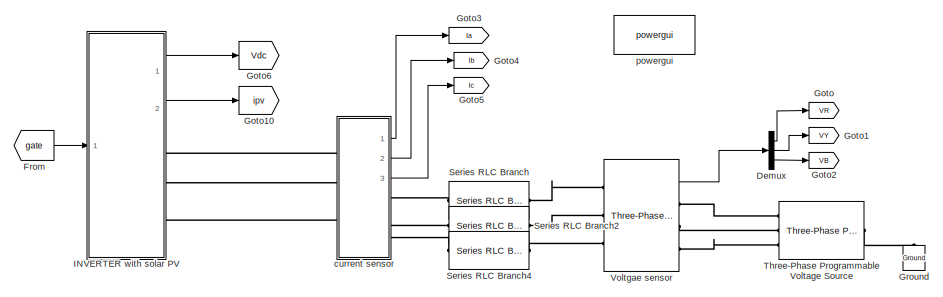
[diagram: root canvas - part 1/3, top left region]
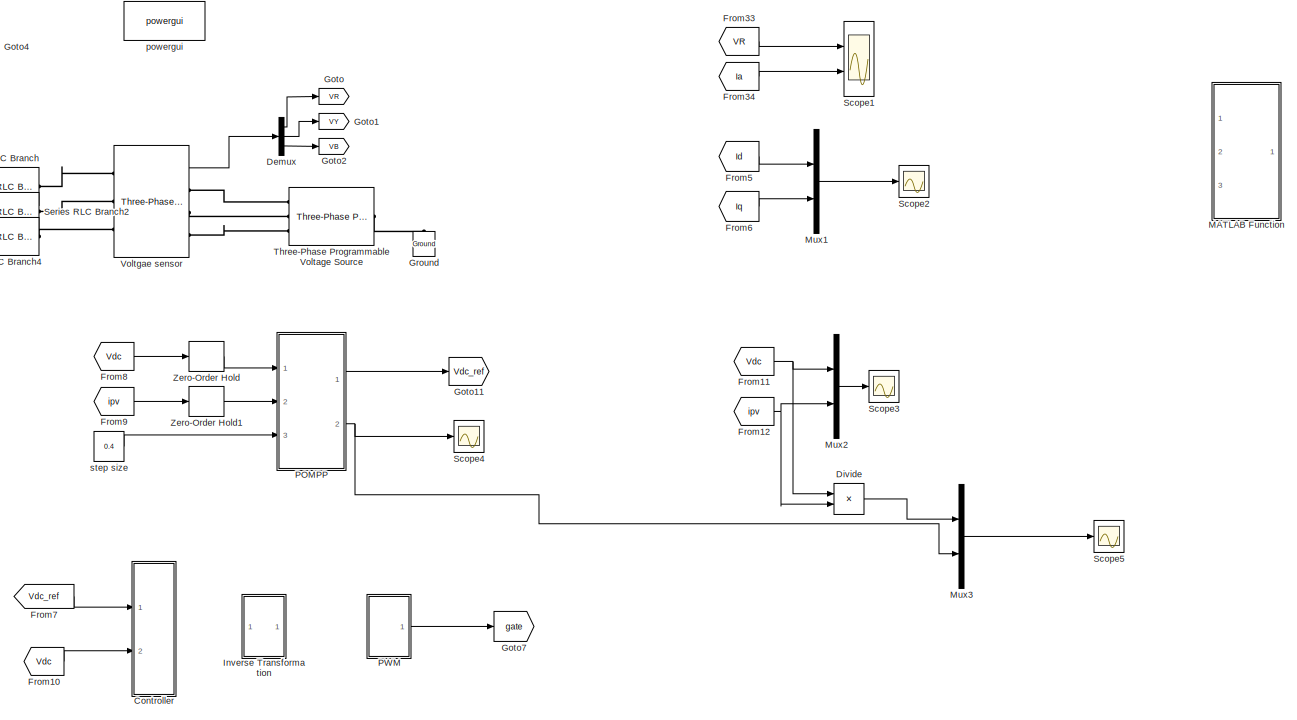
[diagram: root canvas - part 2/3, center side, full height]
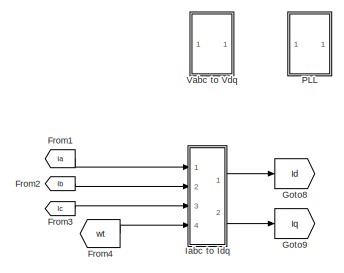
[diagram: root canvas - part 3/3, bottom left region]
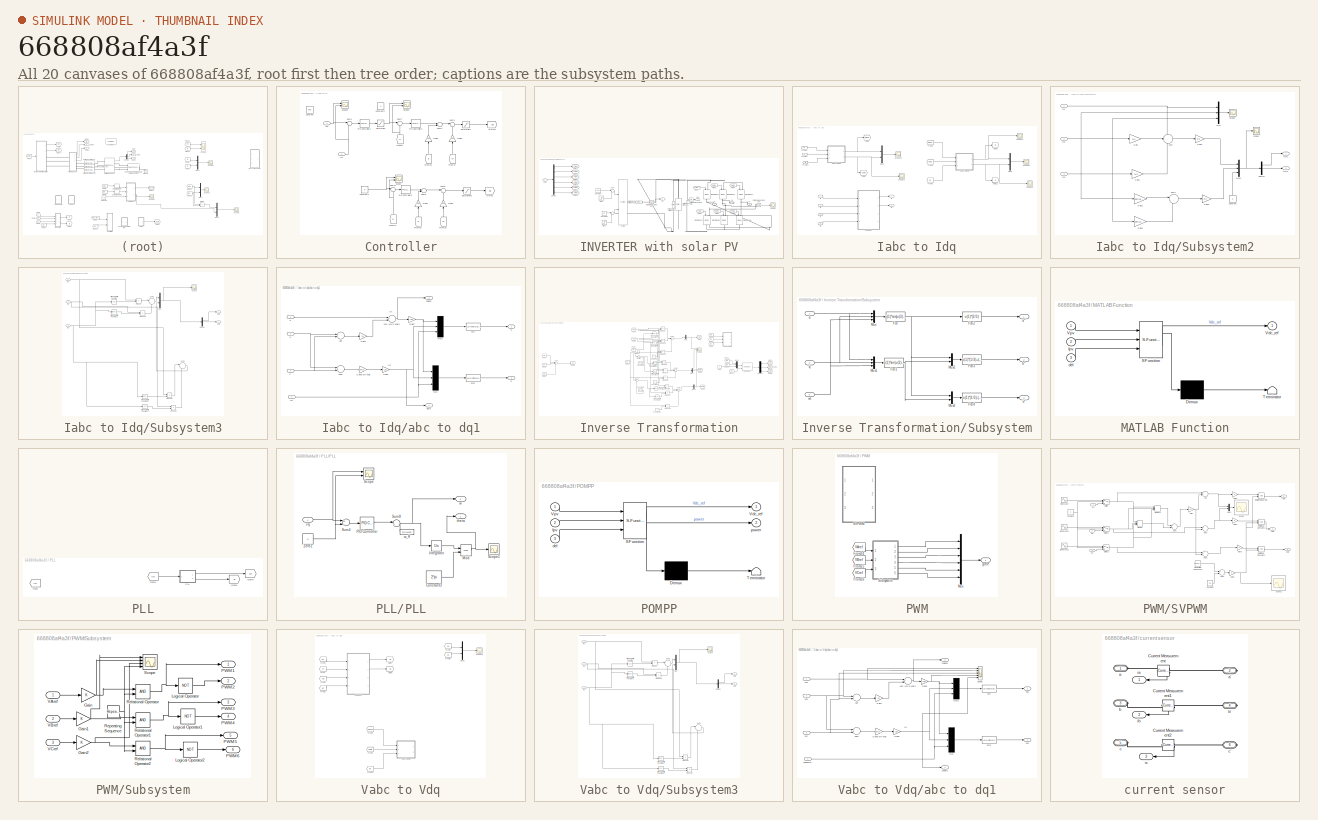
[diagram: thumbnail index - all 20 canvases of the model, root first then tree order]
MODEL slx_668808af4a3f
KIND model
CONFIG AbsTol = auto
CONFIG EnableMultiTasking = off
CONFIG FixedStep = 1e-6
CONFIG MaxStep = auto
CONFIG MinStep = auto
CONFIG RelTol = 1e-3
CONFIG SampleTimeConstraint = Unconstrained
CONFIG Solver = FixedStepAuto
CONFIG SolverName = FixedStepAuto
CONFIG StartTime = 0.0
CONFIG StopTime = 3
BLOCK [SubSystem] Controller
  Ports = [2]
  RequestExecContextInheritance = off
BLOCK [Constant] Controller/Constant
  Value = 550
BLOCK [Constant] Controller/Constant2
  Value = -5
BLOCK [Constant] Controller/Constant3
  Value = 0
BLOCK [From] Controller/From14
  GotoTag = Iq
  TagVisibility = global
BLOCK [From] Controller/From16
  GotoTag = Iq
  TagVisibility = global
BLOCK [From] Controller/From17
  GotoTag = Vd
  TagVisibility = global
BLOCK [From] Controller/From19
  GotoTag = Id
  TagVisibility = global
BLOCK [From] Controller/From20
  GotoTag = Vq
  TagVisibility = global
BLOCK [From] Controller/From6
  GotoTag = Id
  TagVisibility = global
BLOCK [Gain] Controller/Gain1
  Gain = 1/350
  OutDataTypeStr = Inherit: Inherit via internal rule
  ParamDataTypeStr = Inherit: Inherit via internal rule
  SaturateOnIntegerOverflow = off
BLOCK [Gain] Controller/Gain2
  Gain = 1/350
  OutDataTypeStr = Inherit: Inherit via internal rule
  ParamDataTypeStr = Inherit: Inherit via internal rule
  SaturateOnIntegerOverflow = off
BLOCK [Gain] Controller/Gain3
  Gain = 1/350
  OutDataTypeStr = Inherit: Inherit via internal rule
  ParamDataTypeStr = Inherit: Inherit via internal rule
  SaturateOnIntegerOverflow = off
BLOCK [Gain] Controller/Gain4
  Gain = 1/350
  OutDataTypeStr = Inherit: Inherit via internal rule
  ParamDataTypeStr = Inherit: Inherit via internal rule
  SaturateOnIntegerOverflow = off
BLOCK [Goto] Controller/Goto12
  GotoTag = Ed
  TagVisibility = global
BLOCK [Goto] Controller/Goto8
  GotoTag = Eq
  TagVisibility = global
BLOCK [Inport] Controller/In1
  IconDisplay = Port number
  Port = 2
BLOCK [Inport] Controller/In2
  IconDisplay = Port number
BLOCK [Reference] Controller/PID Controller1  REF=simulink/Continuous/PID Controller
  Ports = [1, 1]
  SourceBlock = simulink/Continuous/PID Controller
  SourceProductBaseCode = SL
  SourceProductName = Simulink
  SourceType = PID 1dof
BLOCK [Reference] Controller/PID Controller3  REF=simulink/Continuous/PID Controller
  Ports = [1, 1]
  SourceBlock = simulink/Continuous/PID Controller
  SourceProductBaseCode = SL
  SourceProductName = Simulink
  SourceType = PID 1dof
BLOCK [Reference] Controller/PID Controller6  REF=simulink/Continuous/PID Controller
  Ports = [1, 1]
  SourceBlock = simulink/Continuous/PID Controller
  SourceProductBaseCode = SL
  SourceProductName = Simulink
  SourceType = PID 1dof
BLOCK [Saturate] Controller/Saturation
  InputPortMap = u0
  LowerLimit = -10
  Ports = [1, 1]
  UpperLimit = 10
BLOCK [Saturate] Controller/Saturation1
  InputPortMap = u0
  LowerLimit = -1.2
  Ports = [1, 1]
  UpperLimit = 1.2
BLOCK [Saturate] Controller/Saturation2
  InputPortMap = u0
  LowerLimit = -1.2
  Ports = [1, 1]
  UpperLimit = 1.2
BLOCK [Scope] Controller/Scope
  Floating = off
  NumInputPorts = 2
  Ports = [2]
  ScopeSpecificationString = Simulink.scopes.TimeScopeBlockCfg('CurrentConfiguration', extmgr.ConfigurationSet(extmgr.Configuration('Core','General UI',true),extmgr.Configuration('Core','Source UI',true),extmgr.Configuration('Sources','WiredSimulink',true,'DataLoggingVariableName','ScopeData1'),extmgr.Configuration('Visuals','Time Domain',true,'SerializedDisplays',{struct('MinYLimReal','-1.8889','MaxYLimReal','6.88399','YLabe...<+1480ch>
BLOCK [Scope] Controller/Scope1
  Floating = off
  NumInputPorts = 2
  Ports = [2]
  ScopeSpecificationString = Simulink.scopes.TimeScopeBlockCfg('CurrentConfiguration', extmgr.ConfigurationSet(extmgr.Configuration('Core','General UI',true),extmgr.Configuration('Core','Source UI',true),extmgr.Configuration('Sources','WiredSimulink',true,'DataLoggingVariableName','ScopeData2'),extmgr.Configuration('Visuals','Time Domain',true,'SerializedDisplays',{struct('MinYLimReal','-11.93266','MaxYLimReal','1.32585','YLa...<+1487ch>
BLOCK [Scope] Controller/Scope2
  Floating = off
  NumInputPorts = 2
  Ports = [2]
  ScopeSpecificationString = Simulink.scopes.TimeScopeBlockCfg('CurrentConfiguration', extmgr.ConfigurationSet(extmgr.Configuration('Core','General UI',true),extmgr.Configuration('Core','Source UI',true),extmgr.Configuration('Sources','WiredSimulink',true,'DataLoggingVariableName','ScopeData5'),extmgr.Configuration('Visuals','Time Domain',true,'SerializedDisplays',{struct('MinYLimReal','669.36984','MaxYLimReal','894.14284','Y...<+1735ch>
BLOCK [Sum] Controller/Sum1
  IconShape = round
  InputSameDT = off
  Inputs = |+-
  OutDataTypeStr = Inherit: Inherit via internal rule
  Ports = [2, 1]
  SaturateOnIntegerOverflow = off
BLOCK [Sum] Controller/Sum12
  IconShape = round
  InputSameDT = off
  Inputs = |+-
  OutDataTypeStr = Inherit: Inherit via internal rule
  Ports = [2, 1]
  SaturateOnIntegerOverflow = off
BLOCK [Sum] Controller/Sum2
  InputSameDT = off
  Inputs = -+
  OutDataTypeStr = Inherit: Inherit via internal rule
  Ports = [2, 1]
  SaturateOnIntegerOverflow = off
BLOCK [Sum] Controller/Sum3
  IconShape = round
  InputSameDT = off
  Inputs = |++
  OutDataTypeStr = Inherit: Inherit via internal rule
  Ports = [2, 1]
  SaturateOnIntegerOverflow = off
BLOCK [Sum] Controller/Sum5
  InputSameDT = off
  Inputs = --
  OutDataTypeStr = Inherit: Inherit via internal rule
  Ports = [2, 1]
  SaturateOnIntegerOverflow = off
BLOCK [Sum] Controller/Sum6
  IconShape = round
  InputSameDT = off
  Inputs = |++
  OutDataTypeStr = Inherit: Inherit via internal rule
  Ports = [2, 1]
  SaturateOnIntegerOverflow = off
BLOCK [Sum] Controller/Sum7
  IconShape = round
  InputSameDT = off
  Inputs = |+-
  OutDataTypeStr = Inherit: Inherit via internal rule
  Ports = [2, 1]
  SaturateOnIntegerOverflow = off
BLOCK [Demux] Demux
  DisplayOption = bar
  Outputs = 3
  Ports = [1, 3]
BLOCK [Product] Divide
  InputSameDT = off
  Inputs = **
  OutDataTypeStr = Inherit: Inherit via internal rule
  Ports = [2, 1]
  RndMeth = Floor
  SaturateOnIntegerOverflow = off
BLOCK [From] From
  GotoTag = gate
BLOCK [From] From1
  GotoTag = Ia
  TagVisibility = global
BLOCK [From] From10
  GotoTag = Vdc
BLOCK [From] From11
  GotoTag = Vdc
BLOCK [From] From12
  GotoTag = ipv
BLOCK [From] From2
  GotoTag = Ib
  TagVisibility = global
BLOCK [From] From3
  GotoTag = Ic
  TagVisibility = global
BLOCK [From] From33
  GotoTag = VR
  TagVisibility = global
BLOCK [From] From34
  GotoTag = Ia
  TagVisibility = global
BLOCK [From] From4
  GotoTag = wt
  TagVisibility = global
BLOCK [From] From5
  GotoTag = Id
  TagVisibility = global
BLOCK [From] From6
  GotoTag = Iq
  TagVisibility = global
BLOCK [From] From7
  GotoTag = Vdc_ref
BLOCK [From] From8
  GotoTag = Vdc
BLOCK [From] From9
  GotoTag = ipv
BLOCK [Goto] Goto
  GotoTag = VR
  TagVisibility = global
BLOCK [Goto] Goto1
  GotoTag = VY
  TagVisibility = global
BLOCK [Goto] Goto10
  GotoTag = ipv
BLOCK [Goto] Goto11
  GotoTag = Vdc_ref
BLOCK [Goto] Goto2
  GotoTag = VB
  TagVisibility = global
BLOCK [Goto] Goto3
  GotoTag = Ia
  TagVisibility = global
BLOCK [Goto] Goto4
  GotoTag = Ib
  TagVisibility = global
BLOCK [Goto] Goto5
  GotoTag = Ic
  TagVisibility = global
BLOCK [Goto] Goto6
  GotoTag = Vdc
BLOCK [Goto] Goto7
  GotoTag = gate
BLOCK [Goto] Goto8
  GotoTag = Id
  TagVisibility = global
BLOCK [Goto] Goto9
  GotoTag = Iq
  TagVisibility = global
BLOCK [Reference] Ground  REF=powerlib/Elements/Ground
  Ports = [0, 0, 0, 0, 0, 1]
  SourceBlock = powerlib/Elements/Ground
  SourceProductBaseCode = PS
  SourceProductName = Simscape Power Systems
  SourceType = Ground
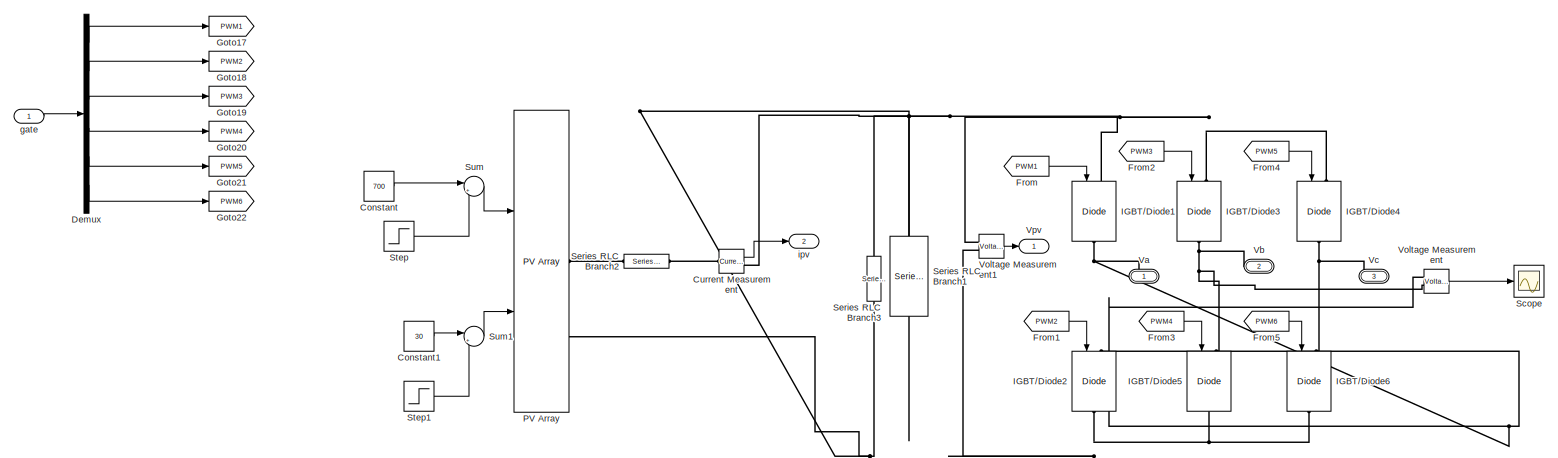
[diagram: INVERTER with solar PV - part 1/1, most of the canvas]
BLOCK [SubSystem] INVERTER with solar PV
  Ports = [1, 2, 0, 0, 0, 0, 3]
  RequestExecContextInheritance = off
BLOCK [Constant] INVERTER with solar PV/Constant
  Value = 700
BLOCK [Constant] INVERTER with solar PV/Constant1
  Value = 30
BLOCK [Reference] INVERTER with solar PV/Current Measurement  REF=powerlib/Measurements/Current Measurement
  Ports = [0, 1, 0, 0, 0, 1, 1]
  SourceBlock = powerlib/Measurements/Current Measurement
  SourceProductBaseCode = PS
  SourceProductName = Simscape Power Systems
  SourceType = Current Measurement
  UserDataPersistent = on
BLOCK [Demux] INVERTER with solar PV/Demux
  DisplayOption = bar
  Outputs = 6
  Ports = [1, 6]
BLOCK [From] INVERTER with solar PV/From
  GotoTag = PWM1
  TagVisibility = global
BLOCK [From] INVERTER with solar PV/From1
  GotoTag = PWM2
  TagVisibility = global
BLOCK [From] INVERTER with solar PV/From2
  GotoTag = PWM3
  TagVisibility = global
BLOCK [From] INVERTER with solar PV/From3
  GotoTag = PWM4
  TagVisibility = global
BLOCK [From] INVERTER with solar PV/From4
  GotoTag = PWM5
  TagVisibility = global
BLOCK [From] INVERTER with solar PV/From5
  GotoTag = PWM6
  TagVisibility = global
BLOCK [Goto] INVERTER with solar PV/Goto17
  GotoTag = PWM1
  TagVisibility = global
BLOCK [Goto] INVERTER with solar PV/Goto18
  GotoTag = PWM2
  TagVisibility = global
BLOCK [Goto] INVERTER with solar PV/Goto19
  GotoTag = PWM3
  TagVisibility = global
BLOCK [Goto] INVERTER with solar PV/Goto20
  GotoTag = PWM4
  TagVisibility = global
BLOCK [Goto] INVERTER with solar PV/Goto21
  GotoTag = PWM5
  TagVisibility = global
BLOCK [Goto] INVERTER with solar PV/Goto22
  GotoTag = PWM6
  TagVisibility = global
BLOCK [Reference] INVERTER with solar PV/IGBT//Diode1  REF=powerlib/Power
Electronics/IGBT//Diode
  Ports = [1, 0, 0, 0, 0, 1, 1]
  SourceBlock = powerlib/Power\nElectronics/IGBT//Diode
  SourceProductBaseCode = PS
  SourceProductName = Simscape Power Systems
  SourceType = IGBT/Diode
BLOCK [Reference] INVERTER with solar PV/IGBT//Diode2  REF=powerlib/Power
Electronics/IGBT//Diode
  Ports = [1, 0, 0, 0, 0, 1, 1]
  SourceBlock = powerlib/Power\nElectronics/IGBT//Diode
  SourceProductBaseCode = PS
  SourceProductName = Simscape Power Systems
  SourceType = IGBT/Diode
BLOCK [Reference] INVERTER with solar PV/IGBT//Diode3  REF=powerlib/Power
Electronics/IGBT//Diode
  Ports = [1, 0, 0, 0, 0, 1, 1]
  SourceBlock = powerlib/Power\nElectronics/IGBT//Diode
  SourceProductBaseCode = PS
  SourceProductName = Simscape Power Systems
  SourceType = IGBT/Diode
BLOCK [Reference] INVERTER with solar PV/IGBT//Diode4  REF=powerlib/Power
Electronics/IGBT//Diode
  Ports = [1, 0, 0, 0, 0, 1, 1]
  SourceBlock = powerlib/Power\nElectronics/IGBT//Diode
  SourceProductBaseCode = PS
  SourceProductName = Simscape Power Systems
  SourceType = IGBT/Diode
BLOCK [Reference] INVERTER with solar PV/IGBT//Diode5  REF=powerlib/Power
Electronics/IGBT//Diode
  Ports = [1, 0, 0, 0, 0, 1, 1]
  SourceBlock = powerlib/Power\nElectronics/IGBT//Diode
  SourceProductBaseCode = PS
  SourceProductName = Simscape Power Systems
  SourceType = IGBT/Diode
BLOCK [Reference] INVERTER with solar PV/IGBT//Diode6  REF=powerlib/Power
Electronics/IGBT//Diode
  Ports = [1, 0, 0, 0, 0, 1, 1]
  SourceBlock = powerlib/Power\nElectronics/IGBT//Diode
  SourceProductBaseCode = PS
  SourceProductName = Simscape Power Systems
  SourceType = IGBT/Diode
BLOCK [Reference] INVERTER with solar PV/PV Array  REF=re_lib/Solar/PV Array
  Ports = [2, 1, 0, 0, 0, 0, 2]
  SourceBlock = re_lib/Solar/PV Array
  SourceProductBaseCode = PS
  SourceProductName = Simscape Power Systems
  SourceType = PV array
BLOCK [Scope] INVERTER with solar PV/Scope
  Floating = off
  NumInputPorts = 1
  Ports = [1]
  ScopeSpecificationString = Simulink.scopes.TimeScopeBlockCfg('CurrentConfiguration', extmgr.ConfigurationSet(extmgr.Configuration('Core','General UI',true),extmgr.Configuration('Core','Source UI',true),extmgr.Configuration('Sources','WiredSimulink',true,'DataLoggingVariableName','ScopeData1'),extmgr.Configuration('Visuals','Time Domain',true,'SerializedDisplays',{struct('MinYLimReal','-910.4316','MaxYLimReal','916.97333','Y...<+1463ch>
BLOCK [Reference] INVERTER with solar PV/Series RLC Branch1  REF=powerlib/Elements/Series RLC Branch
  Ports = [0, 0, 0, 0, 0, 1, 1]
  SourceBlock = powerlib/Elements/Series RLC Branch
  SourceProductBaseCode = PS
  SourceProductName = Simscape Power Systems
  SourceType = Series RLC Branch
BLOCK [Reference] INVERTER with solar PV/Series RLC Branch2  REF=powerlib/Elements/Series RLC Branch
  Ports = [0, 0, 0, 0, 0, 1, 1]
  SourceBlock = powerlib/Elements/Series RLC Branch
  SourceProductBaseCode = PS
  SourceProductName = Simscape Power Systems
  SourceType = Series RLC Branch
BLOCK [Reference] INVERTER with solar PV/Series RLC Branch3  REF=powerlib/Elements/Series RLC Branch
  Ports = [0, 0, 0, 0, 0, 1, 1]
  SourceBlock = powerlib/Elements/Series RLC Branch
  SourceProductBaseCode = PS
  SourceProductName = Simscape Power Systems
  SourceType = Series RLC Branch
BLOCK [Step] INVERTER with solar PV/Step
  After = 200
  SampleTime = 0
  Time = 3
BLOCK [Step] INVERTER with solar PV/Step1
  After = 10
  SampleTime = 0
  Time = 4
BLOCK [Sum] INVERTER with solar PV/Sum
  IconShape = round
  InputSameDT = off
  Inputs = |+-
  OutDataTypeStr = Inherit: Inherit via internal rule
  Ports = [2, 1]
  SaturateOnIntegerOverflow = off
BLOCK [Sum] INVERTER with solar PV/Sum1
  IconShape = round
  InputSameDT = off
  Inputs = |++
  OutDataTypeStr = Inherit: Inherit via internal rule
  Ports = [2, 1]
  SaturateOnIntegerOverflow = off
BLOCK [PMIOPort] INVERTER with solar PV/Va
  Side = Right
BLOCK [PMIOPort] INVERTER with solar PV/Vb
  Port = 2
  Side = Right
BLOCK [PMIOPort] INVERTER with solar PV/Vc
  Port = 3
  Side = Right
BLOCK [Reference] INVERTER with solar PV/Voltage Measurement  REF=powerlib/Measurements/Voltage Measurement
  Ports = [0, 1, 0, 0, 0, 2]
  SourceBlock = powerlib/Measurements/Voltage Measurement
  SourceProductBaseCode = PS
  SourceProductName = Simscape Power Systems
  SourceType = Voltage Measurement
  UserDataPersistent = on
BLOCK [Reference] INVERTER with solar PV/Voltage Measurement1  REF=powerlib/Measurements/Voltage Measurement
  Ports = [0, 1, 0, 0, 0, 2]
  SourceBlock = powerlib/Measurements/Voltage Measurement
  SourceProductBaseCode = PS
  SourceProductName = Simscape Power Systems
  SourceType = Voltage Measurement
  UserDataPersistent = on
BLOCK [Outport] INVERTER with solar PV/Vpv
  IconDisplay = Port number
  VectorParamsAs1DForOutWhenUnconnected = on
BLOCK [Inport] INVERTER with solar PV/gate
  IconDisplay = Port number
BLOCK [Outport] INVERTER with solar PV/ipv
  IconDisplay = Port number
  Port = 2
  VectorParamsAs1DForOutWhenUnconnected = on
BLOCK [SubSystem] Iabc to Idq
  Ports = [4, 2]
  RequestExecContextInheritance = off
BLOCK [From] Iabc to Idq/From10
  Commented = on
  GotoTag = IR
  TagVisibility = global
BLOCK [From] Iabc to Idq/From11
  Commented = on
  GotoTag = IY
  TagVisibility = global
BLOCK [From] Iabc to Idq/From12
  Commented = on
  GotoTag = IB
  TagVisibility = global
BLOCK [From] Iabc to Idq/From6
  Commented = on
  GotoTag = wt
  TagVisibility = global
BLOCK [From] Iabc to Idq/From8
  Commented = on
  GotoTag = Ialpha
  TagVisibility = global
BLOCK [From] Iabc to Idq/From9
  Commented = on
  GotoTag = Ibeta
  TagVisibility = global
BLOCK [Goto] Iabc to Idq/Goto11
  Commented = on
  GotoTag = Iq
  TagVisibility = global
BLOCK [Goto] Iabc to Idq/Goto6
  Commented = on
  GotoTag = Ialpha
  TagVisibility = global
BLOCK [Goto] Iabc to Idq/Goto7
  Commented = on
  GotoTag = Ibeta
  TagVisibility = global
BLOCK [Goto] Iabc to Idq/Goto8
  Commented = on
  GotoTag = Id
  TagVisibility = global
BLOCK [Mux] Iabc to Idq/Mux2
  Commented = on
  DisplayOption = bar
  Inputs = 2
  Ports = [2, 1]
BLOCK [Mux] Iabc to Idq/Mux5
  Commented = on
  DisplayOption = bar
  Inputs = 2
  Ports = [2, 1]
BLOCK [Scope] Iabc to Idq/Scope10
  Commented = on
  Floating = off
  NumInputPorts = 1
  Ports = [1]
  ScopeSpecificationString = Simulink.scopes.TimeScopeBlockCfg('CurrentConfiguration', extmgr.ConfigurationSet(extmgr.Configuration('Core','General UI',true),extmgr.Configuration('Core','Source UI',true),extmgr.Configuration('Sources','WiredSimulink',true,'DataLoggingVariableName','ScopeData2'),extmgr.Configuration('Visuals','Time Domain',true,'SerializedDisplays',{struct('MinYLimReal','-145.70829','MaxYLimReal','153.4102','Y...<+1492ch>
BLOCK [Scope] Iabc to Idq/Scope11
  Commented = on
  Floating = off
  NumInputPorts = 1
  Ports = [1]
  ScopeSpecificationString = Simulink.scopes.TimeScopeBlockCfg('CurrentConfiguration', extmgr.ConfigurationSet(extmgr.Configuration('Core','General UI',true),extmgr.Configuration('Core','Source UI',true),extmgr.Configuration('Sources','WiredSimulink',true,'DataLoggingVariableName','ScopeData3'),extmgr.Configuration('Visuals','Time Domain',true,'SerializedDisplays',{struct('MinYLimReal','-250.00000','MaxYLimReal','250.00000','...<+1384ch>
BLOCK [Scope] Iabc to Idq/Scope12
  Commented = on
  Floating = off
  NumInputPorts = 1
  Ports = [1]
  ScopeSpecificationString = Simulink.scopes.TimeScopeBlockCfg('CurrentConfiguration', extmgr.ConfigurationSet(extmgr.Configuration('Core','General UI',true),extmgr.Configuration('Core','Source UI',true),extmgr.Configuration('Sources','WiredSimulink',true,'DataLoggingVariableName','ScopeData4'),extmgr.Configuration('Visuals','Time Domain',true,'SerializedDisplays',{struct('MinYLimReal','-232.19658','MaxYLimReal','223.88581','...<+1492ch>
BLOCK [Scope] Iabc to Idq/Scope13
  Commented = on
  Floating = off
  NumInputPorts = 1
  Ports = [1]
  ScopeSpecificationString = Simulink.scopes.TimeScopeBlockCfg('CurrentConfiguration', extmgr.ConfigurationSet(extmgr.Configuration('Core','General UI',true),extmgr.Configuration('Core','Source UI',true),extmgr.Configuration('Sources','WiredSimulink',true,'DataLoggingVariableName','ScopeData5'),extmgr.Configuration('Visuals','Time Domain',true,'SerializedDisplays',{struct('MinYLimReal','-224.99692','MaxYLimReal','24.97225','Y...<+1383ch>
BLOCK [Scope] Iabc to Idq/Scope14
  Commented = on
  Floating = off
  NumInputPorts = 1
  Ports = [1]
  ScopeSpecificationString = Simulink.scopes.TimeScopeBlockCfg('CurrentConfiguration', extmgr.ConfigurationSet(extmgr.Configuration('Core','General UI',true),extmgr.Configuration('Core','Source UI',true),extmgr.Configuration('Sources','WiredSimulink',true,'DataLoggingVariableName','ScopeData6'),extmgr.Configuration('Visuals','Time Domain',true,'SerializedDisplays',{struct('MinYLimReal','-232.19658','MaxYLimReal','223.88581','...<+1491ch>
BLOCK [SubSystem] Iabc to Idq/Subsystem2
  Commented = on
  Ports = [3, 2]
  RequestExecContextInheritance = off
BLOCK [Constant] Iabc to Idq/Subsystem2/Constant
  Value = 0
BLOCK [Demux] Iabc to Idq/Subsystem2/Demux
  DisplayOption = bar
  Outputs = 3
  Ports = [1, 3]
BLOCK [Gain] Iabc to Idq/Subsystem2/Gain
  Gain = 1/2
  OutDataTypeStr = Inherit: Inherit via internal rule
  ParamDataTypeStr = Inherit: Inherit via internal rule
  SaturateOnIntegerOverflow = off
BLOCK [Gain] Iabc to Idq/Subsystem2/Gain1
  Gain = 1/2
  OutDataTypeStr = Inherit: Inherit via internal rule
  ParamDataTypeStr = Inherit: Inherit via internal rule
  SaturateOnIntegerOverflow = off
BLOCK [Gain] Iabc to Idq/Subsystem2/Gain2
  Gain = sqrt(3)/2
  OutDataTypeStr = Inherit: Inherit via internal rule
  ParamDataTypeStr = Inherit: Inherit via internal rule
  SaturateOnIntegerOverflow = off
BLOCK [Gain] Iabc to Idq/Subsystem2/Gain3
  Gain = sqrt(3)/2
  OutDataTypeStr = Inherit: Inherit via internal rule
  ParamDataTypeStr = Inherit: Inherit via internal rule
  SaturateOnIntegerOverflow = off
BLOCK [Gain] Iabc to Idq/Subsystem2/Gain4
  Gain = 2/3
  OutDataTypeStr = Inherit: Inherit via internal rule
  ParamDataTypeStr = Inherit: Inherit via internal rule
  SaturateOnIntegerOverflow = off
BLOCK [Gain] Iabc to Idq/Subsystem2/Gain5
  Gain = 2/3
  OutDataTypeStr = Inherit: Inherit via internal rule
  ParamDataTypeStr = Inherit: Inherit via internal rule
  SaturateOnIntegerOverflow = off
BLOCK [Inport] Iabc to Idq/Subsystem2/In1
  IconDisplay = Port number
BLOCK [Inport] Iabc to Idq/Subsystem2/In2
  IconDisplay = Port number
  Port = 2
BLOCK [Inport] Iabc to Idq/Subsystem2/In3
  IconDisplay = Port number
  Port = 3
BLOCK [Mux] Iabc to Idq/Subsystem2/Mux
  DisplayOption = bar
  Inputs = 3
  Ports = [3, 1]
BLOCK [Mux] Iabc to Idq/Subsystem2/Mux1
  DisplayOption = bar
  Inputs = 3
  Ports = [3, 1]
BLOCK [Outport] Iabc to Idq/Subsystem2/Out1
  IconDisplay = Port number
BLOCK [Outport] Iabc to Idq/Subsystem2/Out2
  IconDisplay = Port number
  Port = 2
BLOCK [Scope] Iabc to Idq/Subsystem2/Scope
  Floating = off
  NumInputPorts = 1
  Ports = [1]
  ScopeSpecificationString = Simulink.scopes.TimeScopeBlockCfg('CurrentConfiguration', extmgr.ConfigurationSet(extmgr.Configuration('Core','General UI',true),extmgr.Configuration('Core','Source UI',true),extmgr.Configuration('Sources','WiredSimulink',true),extmgr.Configuration('Visuals','Time Domain',true,'SerializedDisplays',{struct('MinYLimReal','-742.2262','MaxYLimReal','597.8509','YLabelReal','','MinYLimMag',' 0.00000','M...<+1352ch>
BLOCK [Scope] Iabc to Idq/Subsystem2/Scope1
  Floating = off
  NumInputPorts = 1
  Ports = [1]
  ScopeSpecificationString = Simulink.scopes.TimeScopeBlockCfg('CurrentConfiguration', extmgr.ConfigurationSet(extmgr.Configuration('Core','General UI',true),extmgr.Configuration('Core','Source UI',true),extmgr.Configuration('Sources','WiredSimulink',true,'DataLoggingVariableName','ScopeData1'),extmgr.Configuration('Visuals','Time Domain',true,'SerializedDisplays',{struct('MinYLimReal','-676.32638','MaxYLimReal','733.75618','...<+1388ch>
BLOCK [Sum] Iabc to Idq/Subsystem2/Sum
  IconShape = round
  InputSameDT = off
  Inputs = +--
  OutDataTypeStr = Inherit: Inherit via internal rule
  Ports = [3, 1]
  SaturateOnIntegerOverflow = off
BLOCK [Sum] Iabc to Idq/Subsystem2/Sum1
  IconShape = round
  InputSameDT = off
  Inputs = |+-
  OutDataTypeStr = Inherit: Inherit via internal rule
  Ports = [2, 1]
  SaturateOnIntegerOverflow = off
BLOCK [SubSystem] Iabc to Idq/Subsystem3
  Commented = on
  Ports = [3, 2]
  RequestExecContextInheritance = off
BLOCK [Demux] Iabc to Idq/Subsystem3/Demux
  DisplayOption = bar
  Outputs = 2
  Ports = [1, 2]
BLOCK [Inport] Iabc to Idq/Subsystem3/In1
  IconDisplay = Port number
BLOCK [Inport] Iabc to Idq/Subsystem3/In2
  IconDisplay = Port number
  Port = 2
BLOCK [Inport] Iabc to Idq/Subsystem3/In3
  IconDisplay = Port number
  Port = 3
BLOCK [Mux] Iabc to Idq/Subsystem3/Mux
  DisplayOption = bar
  Inputs = 2
  Ports = [2, 1]
BLOCK [Outport] Iabc to Idq/Subsystem3/Out1
  IconDisplay = Port number
BLOCK [Outport] Iabc to Idq/Subsystem3/Out2
  IconDisplay = Port number
  Port = 2
BLOCK [Product] Iabc to Idq/Subsystem3/Product
  InputSameDT = off
  OutDataTypeStr = Inherit: Inherit via internal rule
  Ports = [2, 1]
  RndMeth = Floor
  SaturateOnIntegerOverflow = off
BLOCK [Product] Iabc to Idq/Subsystem3/Product1
  InputSameDT = off
  OutDataTypeStr = Inherit: Inherit via internal rule
  Ports = [2, 1]
  RndMeth = Floor
  SaturateOnIntegerOverflow = off
BLOCK [Product] Iabc to Idq/Subsystem3/Product2
  InputSameDT = off
  OutDataTypeStr = Inherit: Inherit via internal rule
  Ports = [2, 1]
  RndMeth = Floor
  SaturateOnIntegerOverflow = off
BLOCK [Product] Iabc to Idq/Subsystem3/Product3
  InputSameDT = off
  OutDataTypeStr = Inherit: Inherit via internal rule
  Ports = [2, 1]
  RndMeth = Floor
  SaturateOnIntegerOverflow = off
BLOCK [Scope] Iabc to Idq/Subsystem3/Scope
  Floating = off
  NumInputPorts = 1
  Ports = [1]
  ScopeSpecificationString = Simulink.scopes.TimeScopeBlockCfg('CurrentConfiguration', extmgr.ConfigurationSet(extmgr.Configuration('Core','General UI',true),extmgr.Configuration('Core','Source UI',true),extmgr.Configuration('Sources','WiredSimulink',true,'DataLoggingVariableName','ScopeData5'),extmgr.Configuration('Visuals','Time Domain',true,'SerializedDisplays',{struct('MinYLimReal','-164.00294','MaxYLimReal','126.11327','...<+1467ch>
BLOCK [Sum] Iabc to Idq/Subsystem3/Sum1
  IconShape = round
  InputSameDT = off
  Inputs = |-+
  OutDataTypeStr = Inherit: Inherit via internal rule
  Ports = [2, 1]
  SaturateOnIntegerOverflow = off
BLOCK [Sum] Iabc to Idq/Subsystem3/Sum2
  IconShape = round
  InputSameDT = off
  Inputs = |++
  OutDataTypeStr = Inherit: Inherit via internal rule
  Ports = [2, 1]
  SaturateOnIntegerOverflow = off
BLOCK [Trigonometry] Iabc to Idq/Subsystem3/Trigonometric Function
  Operator = cos
  Ports = [1, 1]
BLOCK [Trigonometry] Iabc to Idq/Subsystem3/Trigonometric Function1
  Ports = [1, 1]
BLOCK [Trigonometry] Iabc to Idq/Subsystem3/Trigonometric Function2
  Ports = [1, 1]
BLOCK [Trigonometry] Iabc to Idq/Subsystem3/Trigonometric Function3
  Operator = cos
  Ports = [1, 1]
BLOCK [SubSystem] Iabc to Idq/abc to dq1
  Ports = [4, 4]
  RequestExecContextInheritance = off
BLOCK [Gain] Iabc to Idq/abc to dq1/0.866(VsY-VsB)
  Gain = sqrt(3)/2
  OutDataTypeStr = Inherit: Inherit via internal rule
  ParamDataTypeStr = Inherit: Inherit via internal rule
  SaturateOnIntegerOverflow = off
BLOCK [Sum] Iabc to Idq/abc to dq1/Add
  InputSameDT = off
  OutDataTypeStr = Inherit: Inherit via internal rule
  Ports = [2, 1]
  SaturateOnIntegerOverflow = off
BLOCK [Sum] Iabc to Idq/abc to dq1/Add2
  InputSameDT = off
  Inputs = +-
  OutDataTypeStr = Inherit: Inherit via internal rule
  Ports = [2, 1]
  SaturateOnIntegerOverflow = off
BLOCK [Fcn] Iabc to Idq/abc to dq1/Fcn
  Expr = u(1)*cos(u(3))+u(2)*sin(u(3))
BLOCK [Fcn] Iabc to Idq/abc to dq1/Fcn1
  Expr = -u(1)*sin(u(3))+u(2)*cos(u(3))
BLOCK [Gain] Iabc to Idq/abc to dq1/Gain1
  Gain = 1/2
  OutDataTypeStr = Inherit: Inherit via internal rule
  ParamDataTypeStr = Inherit: Inherit via internal rule
  SaturateOnIntegerOverflow = off
BLOCK [Gain] Iabc to Idq/abc to dq1/Gain2
  Gain = (2/3)
  OutDataTypeStr = Inherit: Inherit via internal rule
  ParamDataTypeStr = Inherit: Inherit via internal rule
  SaturateOnIntegerOverflow = off
BLOCK [Gain] Iabc to Idq/abc to dq1/Gain3
  Gain = (2/3)
  OutDataTypeStr = Inherit: Inherit via internal rule
  ParamDataTypeStr = Inherit: Inherit via internal rule
  SaturateOnIntegerOverflow = off
BLOCK [Mux] Iabc to Idq/abc to dq1/Mux
  DisplayOption = bar
  Inputs = 3
  Ports = [3, 1]
BLOCK [Mux] Iabc to Idq/abc to dq1/Mux1
  DisplayOption = bar
  Inputs = 3
  Ports = [3, 1]
BLOCK [Sum] Iabc to Idq/abc to dq1/VsR-VsY//2-VsB//2
  InputSameDT = off
  Inputs = +-
  OutDataTypeStr = Inherit: Inherit via internal rule
  Ports = [2, 1]
  SaturateOnIntegerOverflow = off
BLOCK [Inport] Iabc to Idq/abc to dq1/a
  IconDisplay = Port number
BLOCK [Inport] Iabc to Idq/abc to dq1/b
  IconDisplay = Port number
  Port = 2
BLOCK [Outport] Iabc to Idq/abc to dq1/beta
  IconDisplay = Port number
  Port = 4
  VectorParamsAs1DForOutWhenUnconnected = on
BLOCK [Inport] Iabc to Idq/abc to dq1/c
  IconDisplay = Port number
  Port = 3
BLOCK [Outport] Iabc to Idq/abc to dq1/d
  IconDisplay = Port number
  VectorParamsAs1DForOutWhenUnconnected = on
BLOCK [Outport] Iabc to Idq/abc to dq1/q
  IconDisplay = Port number
  Port = 2
  VectorParamsAs1DForOutWhenUnconnected = on
BLOCK [Outport] Iabc to Idq/abc to dq1/salpha
  IconDisplay = Port number
  Port = 3
  VectorParamsAs1DForOutWhenUnconnected = on
BLOCK [Inport] Iabc to Idq/abc to dq1/wt
  IconDisplay = Port number
  Port = 4
BLOCK [Inport] Iabc to Idq/ia
  IconDisplay = Port number
BLOCK [Inport] Iabc to Idq/ib
  IconDisplay = Port number
  Port = 2
BLOCK [Inport] Iabc to Idq/ic
  IconDisplay = Port number
  Port = 3
BLOCK [Outport] Iabc to Idq/id
  IconDisplay = Port number
  VectorParamsAs1DForOutWhenUnconnected = on
BLOCK [Outport] Iabc to Idq/iq
  IconDisplay = Port number
  Port = 2
  VectorParamsAs1DForOutWhenUnconnected = on
BLOCK [Inport] Iabc to Idq/wt
  IconDisplay = Port number
  Port = 4
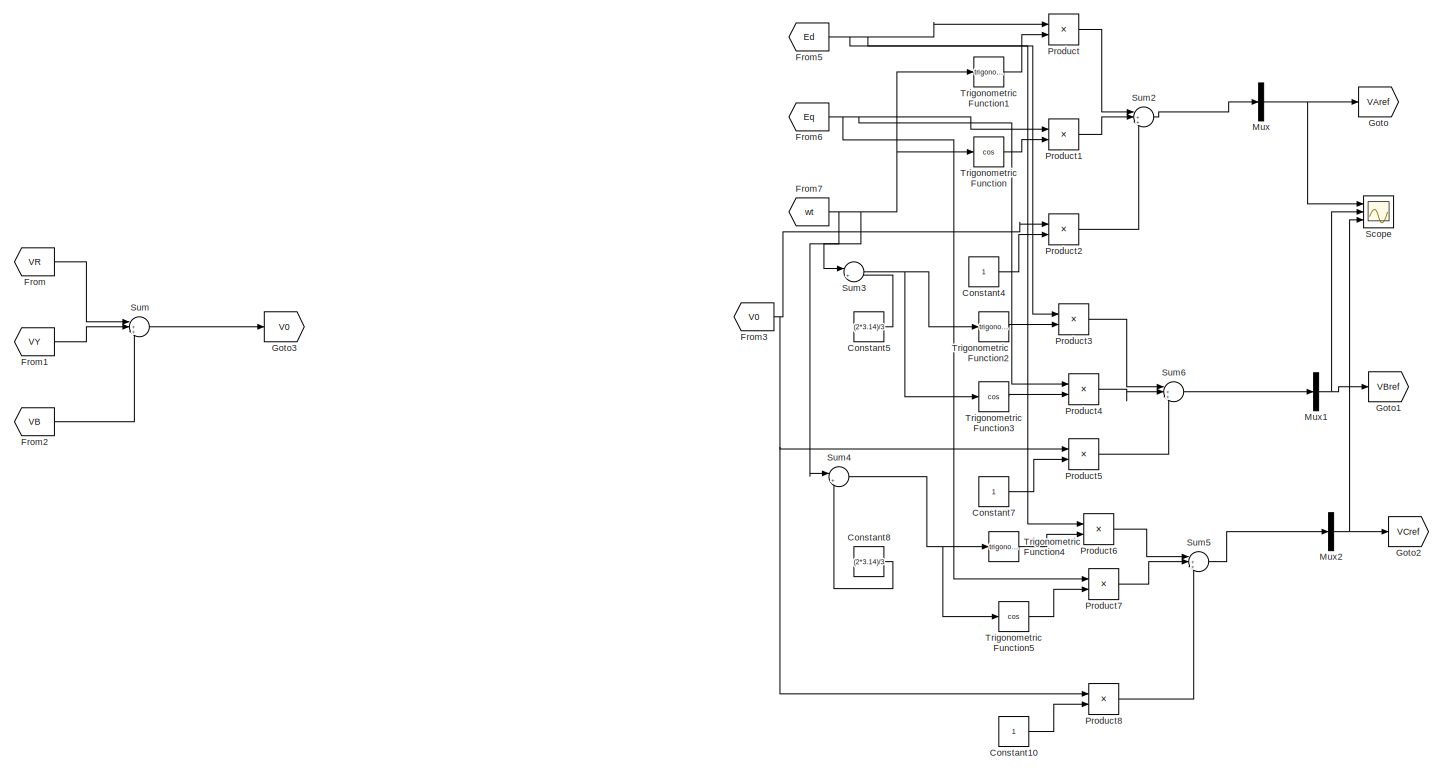
[diagram: Inverse Transformation - part 1/2, center side, full height]
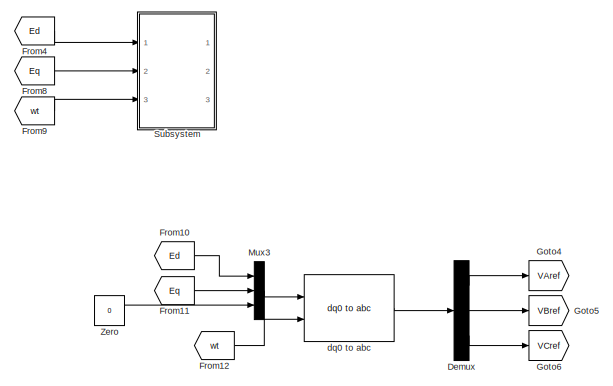
[diagram: Inverse Transformation - part 2/2, middle right region]
BLOCK [SubSystem] Inverse Transformation
  Ports = []
  RequestExecContextInheritance = off
BLOCK [Constant] Inverse Transformation/Constant10
  Commented = on
BLOCK [Constant] Inverse Transformation/Constant4
  Commented = on
BLOCK [Constant] Inverse Transformation/Constant5
  Commented = on
  Value = (2*3.14)/3
BLOCK [Constant] Inverse Transformation/Constant7
  Commented = on
BLOCK [Constant] Inverse Transformation/Constant8
  Commented = on
  Value = (2*3.14)/3
BLOCK [Demux] Inverse Transformation/Demux
  DisplayOption = bar
  Outputs = 3
  Ports = [1, 3]
BLOCK [From] Inverse Transformation/From
  Commented = on
  GotoTag = VR
  TagVisibility = global
BLOCK [From] Inverse Transformation/From1
  Commented = on
  GotoTag = VY
  TagVisibility = global
BLOCK [From] Inverse Transformation/From10
  GotoTag = Ed
  TagVisibility = global
BLOCK [From] Inverse Transformation/From11
  GotoTag = Eq
  TagVisibility = global
BLOCK [From] Inverse Transformation/From12
  GotoTag = wt
  TagVisibility = global
BLOCK [From] Inverse Transformation/From2
  Commented = on
  GotoTag = VB
  TagVisibility = global
BLOCK [From] Inverse Transformation/From3
  Commented = on
  GotoTag = V0
  TagVisibility = global
BLOCK [From] Inverse Transformation/From4
  Commented = on
  GotoTag = Ed
  TagVisibility = global
BLOCK [From] Inverse Transformation/From5
  Commented = on
  GotoTag = Ed
  TagVisibility = global
BLOCK [From] Inverse Transformation/From6
  Commented = on
  GotoTag = Eq
  TagVisibility = global
BLOCK [From] Inverse Transformation/From7
  Commented = on
  GotoTag = wt
  TagVisibility = global
BLOCK [From] Inverse Transformation/From8
  Commented = on
  GotoTag = Eq
  TagVisibility = global
BLOCK [From] Inverse Transformation/From9
  Commented = on
  GotoTag = wt
  TagVisibility = global
BLOCK [Goto] Inverse Transformation/Goto
  Commented = on
  GotoTag = VAref
  TagVisibility = global
BLOCK [Goto] Inverse Transformation/Goto1
  Commented = on
  GotoTag = VBref
  TagVisibility = global
BLOCK [Goto] Inverse Transformation/Goto2
  Commented = on
  GotoTag = VCref
  TagVisibility = global
BLOCK [Goto] Inverse Transformation/Goto3
  Commented = on
  GotoTag = V0
  TagVisibility = global
BLOCK [Goto] Inverse Transformation/Goto4
  GotoTag = VAref
  TagVisibility = global
BLOCK [Goto] Inverse Transformation/Goto5
  GotoTag = VBref
  TagVisibility = global
BLOCK [Goto] Inverse Transformation/Goto6
  GotoTag = VCref
  TagVisibility = global
BLOCK [Mux] Inverse Transformation/Mux
  Commented = on
  DisplayOption = bar
  Inputs = 1
  Ports = [1, 1]
BLOCK [Mux] Inverse Transformation/Mux1
  Commented = on
  DisplayOption = bar
  Inputs = 1
  Ports = [1, 1]
BLOCK [Mux] Inverse Transformation/Mux2
  Commented = on
  DisplayOption = bar
  Inputs = 1
  Ports = [1, 1]
BLOCK [Mux] Inverse Transformation/Mux3
  DisplayOption = bar
  Inputs = 3
  Ports = [3, 1]
BLOCK [Product] Inverse Transformation/Product
  Commented = on
  InputSameDT = off
  OutDataTypeStr = Inherit: Inherit via internal rule
  Ports = [2, 1]
  RndMeth = Floor
  SaturateOnIntegerOverflow = off
BLOCK [Product] Inverse Transformation/Product1
  Commented = on
  InputSameDT = off
  OutDataTypeStr = Inherit: Inherit via internal rule
  Ports = [2, 1]
  RndMeth = Floor
  SaturateOnIntegerOverflow = off
BLOCK [Product] Inverse Transformation/Product2
  Commented = on
  InputSameDT = off
  OutDataTypeStr = Inherit: Inherit via internal rule
  Ports = [2, 1]
  RndMeth = Floor
  SaturateOnIntegerOverflow = off
BLOCK [Product] Inverse Transformation/Product3
  Commented = on
  InputSameDT = off
  OutDataTypeStr = Inherit: Inherit via internal rule
  Ports = [2, 1]
  RndMeth = Floor
  SaturateOnIntegerOverflow = off
BLOCK [Product] Inverse Transformation/Product4
  Commented = on
  InputSameDT = off
  OutDataTypeStr = Inherit: Inherit via internal rule
  Ports = [2, 1]
  RndMeth = Floor
  SaturateOnIntegerOverflow = off
BLOCK [Product] Inverse Transformation/Product5
  Commented = on
  InputSameDT = off
  OutDataTypeStr = Inherit: Inherit via internal rule
  Ports = [2, 1]
  RndMeth = Floor
  SaturateOnIntegerOverflow = off
BLOCK [Product] Inverse Transformation/Product6
  Commented = on
  InputSameDT = off
  OutDataTypeStr = Inherit: Inherit via internal rule
  Ports = [2, 1]
  RndMeth = Floor
  SaturateOnIntegerOverflow = off
BLOCK [Product] Inverse Transformation/Product7
  Commented = on
  InputSameDT = off
  OutDataTypeStr = Inherit: Inherit via internal rule
  Ports = [2, 1]
  RndMeth = Floor
  SaturateOnIntegerOverflow = off
BLOCK [Product] Inverse Transformation/Product8
  Commented = on
  InputSameDT = off
  OutDataTypeStr = Inherit: Inherit via internal rule
  Ports = [2, 1]
  RndMeth = Floor
  SaturateOnIntegerOverflow = off
BLOCK [Scope] Inverse Transformation/Scope
  Commented = on
  Floating = off
  NumInputPorts = 3
  Ports = [3]
  ScopeSpecificationString = Simulink.scopes.TimeScopeBlockCfg('CurrentConfiguration', extmgr.ConfigurationSet(extmgr.Configuration('Core','General UI',true),extmgr.Configuration('Core','Source UI',true),extmgr.Configuration('Sources','WiredSimulink',true,'DataLoggingVariableName','ScopeData1'),extmgr.Configuration('Visuals','Time Domain',true,'SerializedDisplays',{struct('MinYLimReal','-6.83295','MaxYLimReal','9.87166','YLab...<+1450ch>
BLOCK [SubSystem] Inverse Transformation/Subsystem
  Commented = on
  Ports = [3, 3]
  RequestExecContextInheritance = off
BLOCK [Fcn] Inverse Transformation/Subsystem/Fcn
  Expr = u(1)*cos(u(3))-u(2)*sin(u(3))
BLOCK [Fcn] Inverse Transformation/Subsystem/Fcn1
  Expr = u(1)*sin(u(3))+u(2)*cos(u(3))
BLOCK [Fcn] Inverse Transformation/Subsystem/Fcn2
  Expr = u(1)*(2/3)
BLOCK [Fcn] Inverse Transformation/Subsystem/Fcn3
  Expr = -u(1)*(1/3)+(1/sqrt(3))*u(2)
BLOCK [Fcn] Inverse Transformation/Subsystem/Fcn4
  Expr = -u(1)*(1/3)-(1/sqrt(3))*u(2)
BLOCK [Mux] Inverse Transformation/Subsystem/Mux
  DisplayOption = bar
  Inputs = 3
  Ports = [3, 1]
BLOCK [Mux] Inverse Transformation/Subsystem/Mux1
  DisplayOption = bar
  Inputs = 3
  Ports = [3, 1]
BLOCK [Mux] Inverse Transformation/Subsystem/Mux2
  DisplayOption = bar
  Inputs = 2
  Ports = [2, 1]
BLOCK [Mux] Inverse Transformation/Subsystem/Mux3
  DisplayOption = bar
  Inputs = 2
  Ports = [2, 1]
BLOCK [Outport] Inverse Transformation/Subsystem/a*
  IconDisplay = Port number
  VectorParamsAs1DForOutWhenUnconnected = on
BLOCK [Outport] Inverse Transformation/Subsystem/b*
  IconDisplay = Port number
  Port = 2
  VectorParamsAs1DForOutWhenUnconnected = on
BLOCK [Outport] Inverse Transformation/Subsystem/c*
  IconDisplay = Port number
  Port = 3
  VectorParamsAs1DForOutWhenUnconnected = on
BLOCK [Inport] Inverse Transformation/Subsystem/d
  IconDisplay = Port number
BLOCK [Inport] Inverse Transformation/Subsystem/q
  IconDisplay = Port number
  Port = 2
BLOCK [Inport] Inverse Transformation/Subsystem/wt
  IconDisplay = Port number
  Port = 3
BLOCK [Sum] Inverse Transformation/Sum
  Commented = on
  IconShape = round
  InputSameDT = off
  Inputs = |+++
  OutDataTypeStr = Inherit: Inherit via internal rule
  Ports = [3, 1]
  SaturateOnIntegerOverflow = off
BLOCK [Sum] Inverse Transformation/Sum2
  Commented = on
  IconShape = round
  InputSameDT = off
  Inputs = |+++
  OutDataTypeStr = Inherit: Inherit via internal rule
  Ports = [3, 1]
  SaturateOnIntegerOverflow = off
BLOCK [Sum] Inverse Transformation/Sum3
  Commented = on
  IconShape = round
  InputSameDT = off
  Inputs = |+-
  OutDataTypeStr = Inherit: Inherit via internal rule
  Ports = [2, 1]
  SaturateOnIntegerOverflow = off
BLOCK [Sum] Inverse Transformation/Sum4
  Commented = on
  IconShape = round
  InputSameDT = off
  Inputs = |++
  OutDataTypeStr = Inherit: Inherit via internal rule
  Ports = [2, 1]
  SaturateOnIntegerOverflow = off
BLOCK [Sum] Inverse Transformation/Sum5
  Commented = on
  IconShape = round
  InputSameDT = off
  Inputs = |+++
  OutDataTypeStr = Inherit: Inherit via internal rule
  Ports = [3, 1]
  SaturateOnIntegerOverflow = off
BLOCK [Sum] Inverse Transformation/Sum6
  Commented = on
  IconShape = round
  InputSameDT = off
  Inputs = |+++
  OutDataTypeStr = Inherit: Inherit via internal rule
  Ports = [3, 1]
  SaturateOnIntegerOverflow = off
BLOCK [Trigonometry] Inverse Transformation/Trigonometric Function
  Commented = on
  Operator = cos
  Ports = [1, 1]
BLOCK [Trigonometry] Inverse Transformation/Trigonometric Function1
  Commented = on
  Ports = [1, 1]
BLOCK [Trigonometry] Inverse Transformation/Trigonometric Function2
  Commented = on
  Ports = [1, 1]
BLOCK [Trigonometry] Inverse Transformation/Trigonometric Function3
  Commented = on
  Operator = cos
  Ports = [1, 1]
BLOCK [Trigonometry] Inverse Transformation/Trigonometric Function4
  Commented = on
  Ports = [1, 1]
BLOCK [Trigonometry] Inverse Transformation/Trigonometric Function5
  Commented = on
  Operator = cos
  Ports = [1, 1]
BLOCK [Constant] Inverse Transformation/Zero
  Value = 0
BLOCK [Reference] Inverse Transformation/dq0 to abc  REF=powerlib_meascontrol/Transformations/dq0 to abc
  Ports = [2, 1]
  SourceBlock = powerlib_meascontrol/Transformations/dq0 to abc
  SourceProductBaseCode = PS
  SourceProductName = Simscape Power Systems
  SourceType = dq0 to abc Transformation
BLOCK [SubSystem] MATLAB Function
  ErrorFcn = Stateflow.Translate.translate
  PermitHierarchicalResolution = ExplicitOnly
  Ports = [3, 1]
  RequestExecContextInheritance = off
  SFBlockType = MATLAB Function
  TreatAsAtomicUnit = on
BLOCK [Demux] MATLAB Function/ Demux 
  DisplayOption = bar
  Outputs = 1
  Ports = [1, 1]
BLOCK [S-Function] MATLAB Function/ SFunction 
  EnableBusSupport = on
  FunctionName = sf_sfun
  PortCounts = [3 2]
  Ports = [3, 2]
  SFcnIsStateOwnerBlock = off
  SFunctionDeploymentMode = off
  Tag = Stateflow S-Function solarPV_grid_04 2
BLOCK [Terminator] MATLAB Function/ Terminator 
BLOCK [Inport] MATLAB Function/Ipv
  IconDisplay = Port number
  Port = 2
BLOCK [Outport] MATLAB Function/Vdc_ref
  IconDisplay = Port number
  VectorParamsAs1DForOutWhenUnconnected = on
BLOCK [Inport] MATLAB Function/Vpv
  IconDisplay = Port number
BLOCK [Inport] MATLAB Function/del
  IconDisplay = Port number
  Port = 3
BLOCK [Mux] Mux1
  DisplayOption = bar
  Inputs = 2
  Ports = [2, 1]
BLOCK [Mux] Mux2
  DisplayOption = bar
  Inputs = 2
  Ports = [2, 1]
BLOCK [Mux] Mux3
  DisplayOption = bar
  Inputs = 2
  Ports = [2, 1]
BLOCK [SubSystem] PLL
  Ports = []
  RequestExecContextInheritance = off
BLOCK [From] PLL/From
  GotoTag = Vd
  TagVisibility = global
BLOCK [From] PLL/From1
  GotoTag = Vq
  TagVisibility = global
BLOCK [Goto] PLL/Goto1
  GotoTag = w
  TagVisibility = global
BLOCK [Goto] PLL/Goto4
  GotoTag = wt
  TagVisibility = global
BLOCK [SubSystem] PLL/PLL
  Ports = [1, 2]
  RequestExecContextInheritance = off
BLOCK [Constant] PLL/PLL/Constant3
  Value = 2*pi
BLOCK [Integrator] PLL/PLL/Integrator
  Ports = [1, 1]
BLOCK [Math] PLL/PLL/Mod
  Operator = mod
  Ports = [2, 1]
BLOCK [Reference] PLL/PLL/PID Controller  REF=simulink/Continuous/PID Controller
  Ports = [1, 1]
  SourceBlock = simulink/Continuous/PID Controller
  SourceProductBaseCode = SL
  SourceProductName = Simulink
  SourceType = PID 1dof
BLOCK [Scope] PLL/PLL/Scope
  Floating = off
  NumInputPorts = 2
  Ports = [2]
  ScopeSpecificationString = Simulink.scopes.TimeScopeBlockCfg('CurrentConfiguration', extmgr.ConfigurationSet(extmgr.Configuration('Core','General UI',true),extmgr.Configuration('Core','Source UI',true),extmgr.Configuration('Sources','WiredSimulink',true,'DataLoggingVariableName','ScopeData3'),extmgr.Configuration('Visuals','Time Domain',true,'SerializedDisplays',{struct('MinYLimReal','-367.46078','MaxYLimReal','41.16072','Y...<+1479ch>
BLOCK [Scope] PLL/PLL/Scope1
  Floating = off
  NumInputPorts = 1
  Ports = [1]
  ScopeSpecificationString = Simulink.scopes.TimeScopeBlockCfg('CurrentConfiguration', extmgr.ConfigurationSet(extmgr.Configuration('Core','General UI',true),extmgr.Configuration('Core','Source UI',true),extmgr.Configuration('Sources','WiredSimulink',true,'DataLoggingVariableName','ScopeData4'),extmgr.Configuration('Visuals','Time Domain',true,'SerializedDisplays',{struct('MinYLimReal','-0.78537','MaxYLimReal','7.06834','YLab...<+1480ch>
BLOCK [Sum] PLL/PLL/Sum4
  Inputs = +-
  OutDataTypeStr = Inherit: Inherit via internal rule
  Ports = [2, 1]
  SampleTime = 100e-6
  SaturateOnIntegerOverflow = off
BLOCK [Sum] PLL/PLL/Sum8
  IconShape = round
  InputSameDT = off
  Inputs = |++
  OutDataTypeStr = Inherit: Inherit via internal rule
  Ports = [2, 1]
  SaturateOnIntegerOverflow = off
BLOCK [Constant] PLL/PLL/Zero1
  Value = 0
BLOCK [Outport] PLL/PLL/theta
  IconDisplay = Port number
BLOCK [Inport] PLL/PLL/vq
  IconDisplay = Port number
BLOCK [Outport] PLL/PLL/w
  IconDisplay = Port number
  Port = 2
BLOCK [Constant] PLL/PLL/w_ff
  Value = 2*3.14*50
BLOCK [SubSystem] POMPP
  ErrorFcn = Stateflow.Translate.translate
  PermitHierarchicalResolution = ExplicitOnly
  Ports = [3, 2]
  RequestExecContextInheritance = off
  SFBlockType = MATLAB Function
  TreatAsAtomicUnit = on
BLOCK [Demux] POMPP/ Demux 
  DisplayOption = bar
  Outputs = 1
  Ports = [1, 1]
BLOCK [S-Function] POMPP/ SFunction 
  EnableBusSupport = on
  FunctionName = sf_sfun
  PortCounts = [3 3]
  Ports = [3, 3]
  SFcnIsStateOwnerBlock = off
  SFunctionDeploymentMode = off
  Tag = Stateflow S-Function solarPV_grid_04 1
BLOCK [Terminator] POMPP/ Terminator 
BLOCK [Inport] POMPP/Ipv
  IconDisplay = Port number
  Port = 2
BLOCK [Outport] POMPP/Vdc_ref
  IconDisplay = Port number
  VectorParamsAs1DForOutWhenUnconnected = on
BLOCK [Inport] POMPP/Vpv
  IconDisplay = Port number
BLOCK [Inport] POMPP/del
  IconDisplay = Port number
  Port = 3
BLOCK [Outport] POMPP/power
  IconDisplay = Port number
  Port = 2
  VectorParamsAs1DForOutWhenUnconnected = on
BLOCK [SubSystem] PWM
  Ports = [0, 1]
  RequestExecContextInheritance = off
BLOCK [From] PWM/From24
  GotoTag = VAref
  TagVisibility = global
BLOCK [From] PWM/From25
  GotoTag = VBref
  TagVisibility = global
BLOCK [From] PWM/From26
  GotoTag = VCref
  TagVisibility = global
BLOCK [Mux] PWM/Mux
  DisplayOption = bar
  Inputs = 6
  Ports = [6, 1]
BLOCK [SubSystem] PWM/SVPWM
  Commented = on
  Ports = [3, 3]
  RequestExecContextInheritance = off
BLOCK [Sum] PWM/SVPWM/Add
  InputSameDT = off
  Inputs = +-
  OutDataTypeStr = Inherit: Inherit via internal rule
  Ports = [2, 1]
  SaturateOnIntegerOverflow = off
BLOCK [Sum] PWM/SVPWM/Add1
  InputSameDT = off
  OutDataTypeStr = Inherit: Inherit via internal rule
  Ports = [2, 1]
  SaturateOnIntegerOverflow = off
BLOCK [Sum] PWM/SVPWM/Add2
  InputSameDT = off
  Inputs = +-
  OutDataTypeStr = Inherit: Inherit via internal rule
  Ports = [2, 1]
  SaturateOnIntegerOverflow = off
BLOCK [Sum] PWM/SVPWM/Add3
  InputSameDT = off
  Inputs = +-
  OutDataTypeStr = Inherit: Inherit via internal rule
  Ports = [2, 1]
  SaturateOnIntegerOverflow = off
BLOCK [Sum] PWM/SVPWM/Add4
  InputSameDT = off
  Inputs = +-
  OutDataTypeStr = Inherit: Inherit via internal rule
  Ports = [2, 1]
  SaturateOnIntegerOverflow = off
BLOCK [Constant] PWM/SVPWM/Constant
  Value = -1
BLOCK [Constant] PWM/SVPWM/Constant1
  Value = 0.5
BLOCK [Gain] PWM/SVPWM/Gain
  Gain = 1/2
  OutDataTypeStr = Inherit: Inherit via internal rule
  ParamDataTypeStr = Inherit: Inherit via internal rule
  SaturateOnIntegerOverflow = off
BLOCK [Gain] PWM/SVPWM/Gain1
  Gain = 2
  OutDataTypeStr = Inherit: Inherit via internal rule
  ParamDataTypeStr = Inherit: Inherit via internal rule
  SaturateOnIntegerOverflow = off
BLOCK [Gain] PWM/SVPWM/Gain2
  OutDataTypeStr = Inherit: Inherit via internal rule
  ParamDataTypeStr = Inherit: Inherit via internal rule
  SaturateOnIntegerOverflow = off
BLOCK [Gain] PWM/SVPWM/Gain3
  OutDataTypeStr = Inherit: Inherit via internal rule
  ParamDataTypeStr = Inherit: Inherit via internal rule
  SaturateOnIntegerOverflow = off
BLOCK [Gain] PWM/SVPWM/Gain4
  OutDataTypeStr = Inherit: Inherit via internal rule
  ParamDataTypeStr = Inherit: Inherit via internal rule
  SaturateOnIntegerOverflow = off
BLOCK [Inport] PWM/SVPWM/In1
  IconDisplay = Port number
BLOCK [Inport] PWM/SVPWM/In2
  IconDisplay = Port number
  Port = 2
BLOCK [Inport] PWM/SVPWM/In3
  IconDisplay = Port number
  Port = 3
BLOCK [MinMax] PWM/SVPWM/MinMax
  InputSameDT = off
  Inputs = 3
  Ports = [3, 1]
  SaturateOnIntegerOverflow = off
BLOCK [MinMax] PWM/SVPWM/MinMax1
  Function = max
  InputSameDT = off
  Inputs = 3
  Ports = [3, 1]
  SaturateOnIntegerOverflow = off
BLOCK [Mux] PWM/SVPWM/Mux2
  DisplayOption = bar
  Inputs = 2
  Ports = [2, 1]
BLOCK [Outport] PWM/SVPWM/Out1
  IconDisplay = Port number
  VectorParamsAs1DForOutWhenUnconnected = on
BLOCK [Outport] PWM/SVPWM/Out2
  IconDisplay = Port number
  Port = 2
  VectorParamsAs1DForOutWhenUnconnected = on
BLOCK [Outport] PWM/SVPWM/Out3
  IconDisplay = Port number
  Port = 3
  VectorParamsAs1DForOutWhenUnconnected = on
BLOCK [RelationalOperator] PWM/SVPWM/Relational Operator
  InputSameDT = off
  OutDataTypeStr = boolean
  Ports = [2, 1]
BLOCK [RelationalOperator] PWM/SVPWM/Relational Operator1
  InputSameDT = off
  OutDataTypeStr = boolean
  Ports = [2, 1]
BLOCK [RelationalOperator] PWM/SVPWM/Relational Operator2
  InputSameDT = off
  OutDataTypeStr = boolean
  Ports = [2, 1]
BLOCK [Reference] PWM/SVPWM/Repeating Sequence3  REF=simulink/Sources/Repeating
Sequence
  Ports = [0, 1]
  SourceBlock = simulink/Sources/Repeating\nSequence
  SourceProductBaseCode = SL
  SourceProductName = Simulink
  SourceType = Repeating table
BLOCK [Scope] PWM/SVPWM/Scope
  Floating = off
  NumInputPorts = 1
  Ports = [1]
  ScopeSpecificationString = Simulink.scopes.TimeScopeBlockCfg('CurrentConfiguration', extmgr.ConfigurationSet(extmgr.Configuration('Core','General UI',true),extmgr.Configuration('Core','Source UI',true),extmgr.Configuration('Sources','WiredSimulink',true,'DataLoggingVariableName','ScopeData3','DataLoggingSaveFormat','StructureWithTime','DataLoggingDecimation','1','DataLoggingDecimateData',true),extmgr.Configuration('Visuals'...<+1766ch>
BLOCK [Scope] PWM/SVPWM/Scope1
  Floating = off
  NumInputPorts = 1
  Ports = [1]
  ScopeSpecificationString = Simulink.scopes.TimeScopeBlockCfg('CurrentConfiguration', extmgr.ConfigurationSet(extmgr.Configuration('Core','General UI',true),extmgr.Configuration('Core','Source UI',true),extmgr.Configuration('Sources','WiredSimulink',true,'DataLoggingVariableName','ScopeData5','DataLoggingSaveFormat','StructureWithTime','DataLoggingDecimation','1','DataLoggingDecimateData',true),extmgr.Configuration('Visuals'...<+2045ch>
BLOCK [Sin] PWM/SVPWM/Sine Wave
  Amplitude = 5
  Frequency = 314
  Ports = [0, 1]
  SampleTime = 0
BLOCK [Sin] PWM/SVPWM/Sine Wave1
  Amplitude = 5
  Frequency = 314
  Phase = -2*3.14/3
  Ports = [0, 1]
  SampleTime = 0
BLOCK [Sin] PWM/SVPWM/Sine Wave2
  Amplitude = 5
  Frequency = 314
  Phase = 2*3.14/3
  Ports = [0, 1]
  SampleTime = 0
BLOCK [Switch] PWM/SVPWM/Switch
  InputSameDT = off
  SaturateOnIntegerOverflow = off
BLOCK [Switch] PWM/SVPWM/Switch1
  InputSameDT = off
  SaturateOnIntegerOverflow = off
BLOCK [Switch] PWM/SVPWM/Switch2
  InputSameDT = off
  SaturateOnIntegerOverflow = off
BLOCK [SubSystem] PWM/Subsystem
  Ports = [3, 6]
  RequestExecContextInheritance = off
BLOCK [Gain] PWM/Subsystem/Gain
  OutDataTypeStr = Inherit: Inherit via internal rule
  ParamDataTypeStr = Inherit: Inherit via internal rule
  SaturateOnIntegerOverflow = off
BLOCK [Gain] PWM/Subsystem/Gain1
  OutDataTypeStr = Inherit: Inherit via internal rule
  ParamDataTypeStr = Inherit: Inherit via internal rule
  SaturateOnIntegerOverflow = off
BLOCK [Gain] PWM/Subsystem/Gain2
  OutDataTypeStr = Inherit: Inherit via internal rule
  ParamDataTypeStr = Inherit: Inherit via internal rule
  SaturateOnIntegerOverflow = off
BLOCK [Logic] PWM/Subsystem/Logical Operator
  AllPortsSameDT = off
  Operator = NOT
  OutDataTypeStr = boolean
  Ports = [1, 1]
BLOCK [Logic] PWM/Subsystem/Logical Operator1
  AllPortsSameDT = off
  Operator = NOT
  OutDataTypeStr = boolean
  Ports = [1, 1]
BLOCK [Logic] PWM/Subsystem/Logical Operator2
  AllPortsSameDT = off
  Operator = NOT
  OutDataTypeStr = boolean
  Ports = [1, 1]
BLOCK [Outport] PWM/Subsystem/PWM1
  IconDisplay = Port number
BLOCK [Outport] PWM/Subsystem/PWM2
  IconDisplay = Port number
  Port = 2
BLOCK [Outport] PWM/Subsystem/PWM3
  IconDisplay = Port number
  Port = 3
BLOCK [Outport] PWM/Subsystem/PWM4
  IconDisplay = Port number
  Port = 4
BLOCK [Outport] PWM/Subsystem/PWM5
  IconDisplay = Port number
  Port = 5
BLOCK [Outport] PWM/Subsystem/PWM6
  IconDisplay = Port number
  Port = 6
BLOCK [RelationalOperator] PWM/Subsystem/Relational Operator
  InputSameDT = off
  OutDataTypeStr = boolean
  Ports = [2, 1]
  RndMeth = Simplest
BLOCK [RelationalOperator] PWM/Subsystem/Relational Operator1
  InputSameDT = off
  OutDataTypeStr = boolean
  Ports = [2, 1]
  RndMeth = Simplest
BLOCK [RelationalOperator] PWM/Subsystem/Relational Operator2
  InputSameDT = off
  OutDataTypeStr = boolean
  Ports = [2, 1]
  RndMeth = Simplest
BLOCK [Reference] PWM/Subsystem/Repeating Sequence  REF=simulink/Sources/Repeating
Sequence
  Ports = [0, 1]
  SourceBlock = simulink/Sources/Repeating\nSequence
  SourceProductBaseCode = SL
  SourceProductName = Simulink
  SourceType = Repeating table
BLOCK [Scope] PWM/Subsystem/Scope
  Floating = off
  NumInputPorts = 4
  Ports = [4]
  ScopeSpecificationString = Simulink.scopes.TimeScopeBlockCfg('CurrentConfiguration', extmgr.ConfigurationSet(extmgr.Configuration('Core','General UI',true),extmgr.Configuration('Core','Source UI',true),extmgr.Configuration('Sources','WiredSimulink',true,'DataLoggingVariableName','ScopeData1'),extmgr.Configuration('Visuals','Time Domain',true,'SerializedDisplays',{struct('MinYLimReal','-1.25498','MaxYLimReal','1.25467','YLab...<+1504ch>
BLOCK [Inport] PWM/Subsystem/VAref 
  IconDisplay = Port number
BLOCK [Inport] PWM/Subsystem/VBref
  IconDisplay = Port number
  Port = 2
BLOCK [Inport] PWM/Subsystem/VCref
  IconDisplay = Port number
  Port = 3
BLOCK [Outport] PWM/gate
  IconDisplay = Port number
BLOCK [Scope] Scope1
  Floating = off
  NumInputPorts = 2
  Ports = [2]
  ScopeSpecificationString = Simulink.scopes.TimeScopeBlockCfg('CurrentConfiguration', extmgr.ConfigurationSet(extmgr.Configuration('Core','General UI',true),extmgr.Configuration('Core','Source UI',true),extmgr.Configuration('Sources','WiredSimulink',true,'DataLoggingMaxPoints','100000','DataLoggingSaveFormat','StructureWithTime','DataLoggingVariableName','ScopeData1'),extmgr.Configuration('Visuals','Time Domain',true,'Serial...<+2454ch>
BLOCK [Scope] Scope2
  Floating = off
  NumInputPorts = 1
  Ports = [1]
  ScopeSpecificationString = Simulink.scopes.TimeScopeBlockCfg('CurrentConfiguration', extmgr.ConfigurationSet(extmgr.Configuration('Core','General UI',true),extmgr.Configuration('Core','Source UI',true),extmgr.Configuration('Sources','WiredSimulink',true,'DataLoggingVariableName','ScopeData2'),extmgr.Configuration('Visuals','Time Domain',true,'SerializedDisplays',{struct('MinYLimReal','-20.72742','MaxYLimReal','8.27866','YLa...<+1510ch>
BLOCK [Scope] Scope3
  Floating = off
  NumInputPorts = 1
  Ports = [1]
  ScopeSpecificationString = Simulink.scopes.TimeScopeBlockCfg('CurrentConfiguration', extmgr.ConfigurationSet(extmgr.Configuration('Core','General UI',true),extmgr.Configuration('Core','Source UI',true),extmgr.Configuration('Sources','WiredSimulink',true,'DataLoggingVariableName','ScopeData1'),extmgr.Configuration('Visuals','Time Domain',true,'SerializedDisplays',{struct('MinYLimReal','630.33389','MaxYLimReal','733.02357','Y...<+1542ch>
BLOCK [Scope] Scope4
  Floating = off
  NumInputPorts = 1
  Ports = [1]
  ScopeSpecificationString = Simulink.scopes.TimeScopeBlockCfg('CurrentConfiguration', extmgr.ConfigurationSet(extmgr.Configuration('Core','General UI',true),extmgr.Configuration('Core','Source UI',true),extmgr.Configuration('Sources','WiredSimulink',true,'DataLoggingVariableName','ScopeData8'),extmgr.Configuration('Visuals','Time Domain',true,'SerializedDisplays',{struct('MinYLimReal','3506.85326','MaxYLimReal','3534.41453',...<+1510ch>
BLOCK [Scope] Scope5
  Floating = off
  NumInputPorts = 1
  Ports = [1]
  ScopeSpecificationString = Simulink.scopes.TimeScopeBlockCfg('CurrentConfiguration', extmgr.ConfigurationSet(extmgr.Configuration('Core','General UI',true),extmgr.Configuration('Core','Source UI',true),extmgr.Configuration('Sources','WiredSimulink',true,'DataLoggingVariableName','ScopeData9'),extmgr.Configuration('Visuals','Time Domain',true,'SerializedDisplays',{struct('MinYLimReal','934.69751','MaxYLimReal','1930.9272','Y...<+1459ch>
BLOCK [Reference] Series RLC Branch  REF=powerlib/Elements/Series RLC Branch
  Ports = [0, 0, 0, 0, 0, 1, 1]
  SourceBlock = powerlib/Elements/Series RLC Branch
  SourceProductBaseCode = PS
  SourceProductName = Simscape Power Systems
  SourceType = Series RLC Branch
BLOCK [Reference] Series RLC Branch2  REF=powerlib/Elements/Series RLC Branch
  Ports = [0, 0, 0, 0, 0, 1, 1]
  SourceBlock = powerlib/Elements/Series RLC Branch
  SourceProductBaseCode = PS
  SourceProductName = Simscape Power Systems
  SourceType = Series RLC Branch
BLOCK [Reference] Series RLC Branch4  REF=powerlib/Elements/Series RLC Branch
  Ports = [0, 0, 0, 0, 0, 1, 1]
  SourceBlock = powerlib/Elements/Series RLC Branch
  SourceProductBaseCode = PS
  SourceProductName = Simscape Power Systems
  SourceType = Series RLC Branch
BLOCK [Reference] Three-Phase Programmable Voltage Source  REF=powerlib/Electrical
Sources/Three-Phase
Programmable
Voltage Source
  Ports = [0, 0, 0, 0, 0, 1, 3]
  SourceBlock = powerlib/Electrical\nSources/Three-Phase\nProgrammable\nVoltage Source
  SourceProductBaseCode = PS
  SourceProductName = Simscape Power Systems
  SourceType = Three-Phase Programmable Voltage Source
BLOCK [SubSystem] Vabc to Vdq
  Ports = []
  RequestExecContextInheritance = off
BLOCK [From] Vabc to Vdq/From
  GotoTag = VY
  TagVisibility = global
BLOCK [From] Vabc to Vdq/From1
  GotoTag = VR
  TagVisibility = global
BLOCK [From] Vabc to Vdq/From10
  Commented = on
  GotoTag = wt
  TagVisibility = global
BLOCK [From] Vabc to Vdq/From2
  GotoTag = wt
  TagVisibility = global
BLOCK [From] Vabc to Vdq/From3
  GotoTag = VB
  TagVisibility = global
BLOCK [From] Vabc to Vdq/From4
  GotoTag = Vd
  TagVisibility = global
BLOCK [From] Vabc to Vdq/From5
  GotoTag = Vq
  TagVisibility = global
BLOCK [From] Vabc to Vdq/From8
  Commented = on
  GotoTag = Valpha
BLOCK [From] Vabc to Vdq/From9
  Commented = on
  GotoTag = Vbeta
BLOCK [Goto] Vabc to Vdq/Goto7
  GotoTag = Vd
  TagVisibility = global
BLOCK [Goto] Vabc to Vdq/Goto8
  GotoTag = Vq
  TagVisibility = global
BLOCK [Mux] Vabc to Vdq/Mux5
  DisplayOption = bar
  Inputs = 2
  Ports = [2, 1]
BLOCK [Scope] Vabc to Vdq/Scope12
  Floating = off
  NumInputPorts = 1
  Ports = [1]
  ScopeSpecificationString = Simulink.scopes.TimeScopeBlockCfg('CurrentConfiguration', extmgr.ConfigurationSet(extmgr.Configuration('Core','General UI',true),extmgr.Configuration('Core','Source UI',true),extmgr.Configuration('Sources','WiredSimulink',true,'DataLoggingVariableName','ScopeData9'),extmgr.Configuration('Visuals','Time Domain',true,'SerializedDisplays',{struct('MinYLimReal','-408.24829','MaxYLimReal','408.24829','...<+1520ch>
BLOCK [SubSystem] Vabc to Vdq/Subsystem3
  Commented = on
  Ports = [3, 2]
  RequestExecContextInheritance = off
BLOCK [Demux] Vabc to Vdq/Subsystem3/Demux
  DisplayOption = bar
  Outputs = 2
  Ports = [1, 2]
BLOCK [Inport] Vabc to Vdq/Subsystem3/In1
  IconDisplay = Port number
BLOCK [Inport] Vabc to Vdq/Subsystem3/In2
  IconDisplay = Port number
  Port = 2
BLOCK [Inport] Vabc to Vdq/Subsystem3/In3
  IconDisplay = Port number
  Port = 3
BLOCK [Mux] Vabc to Vdq/Subsystem3/Mux
  DisplayOption = bar
  Inputs = 2
  Ports = [2, 1]
BLOCK [Outport] Vabc to Vdq/Subsystem3/Out1
  IconDisplay = Port number
BLOCK [Outport] Vabc to Vdq/Subsystem3/Out2
  IconDisplay = Port number
  Port = 2
BLOCK [Product] Vabc to Vdq/Subsystem3/Product
  InputSameDT = off
  OutDataTypeStr = Inherit: Inherit via internal rule
  Ports = [2, 1]
  RndMeth = Floor
  SaturateOnIntegerOverflow = off
BLOCK [Product] Vabc to Vdq/Subsystem3/Product1
  InputSameDT = off
  OutDataTypeStr = Inherit: Inherit via internal rule
  Ports = [2, 1]
  RndMeth = Floor
  SaturateOnIntegerOverflow = off
BLOCK [Product] Vabc to Vdq/Subsystem3/Product2
  InputSameDT = off
  OutDataTypeStr = Inherit: Inherit via internal rule
  Ports = [2, 1]
  RndMeth = Floor
  SaturateOnIntegerOverflow = off
BLOCK [Product] Vabc to Vdq/Subsystem3/Product3
  InputSameDT = off
  OutDataTypeStr = Inherit: Inherit via internal rule
  Ports = [2, 1]
  RndMeth = Floor
  SaturateOnIntegerOverflow = off
BLOCK [Scope] Vabc to Vdq/Subsystem3/Scope
  Floating = off
  NumInputPorts = 1
  Ports = [1]
  ScopeSpecificationString = Simulink.scopes.TimeScopeBlockCfg('CurrentConfiguration', extmgr.ConfigurationSet(extmgr.Configuration('Core','General UI',true),extmgr.Configuration('Core','Source UI',true),extmgr.Configuration('Sources','WiredSimulink',true,'DataLoggingVariableName','ScopeData5'),extmgr.Configuration('Visuals','Time Domain',true,'SerializedDisplays',{struct('MinYLimReal','-337.28956','MaxYLimReal','218.18168','...<+1456ch>
BLOCK [Sum] Vabc to Vdq/Subsystem3/Sum1
  IconShape = round
  InputSameDT = off
  Inputs = |-+
  OutDataTypeStr = Inherit: Inherit via internal rule
  Ports = [2, 1]
  SaturateOnIntegerOverflow = off
BLOCK [Sum] Vabc to Vdq/Subsystem3/Sum2
  IconShape = round
  InputSameDT = off
  Inputs = |++
  OutDataTypeStr = Inherit: Inherit via internal rule
  Ports = [2, 1]
  SaturateOnIntegerOverflow = off
BLOCK [Trigonometry] Vabc to Vdq/Subsystem3/Trigonometric Function
  Operator = cos
  Ports = [1, 1]
BLOCK [Trigonometry] Vabc to Vdq/Subsystem3/Trigonometric Function1
  Ports = [1, 1]
BLOCK [Trigonometry] Vabc to Vdq/Subsystem3/Trigonometric Function2
  Ports = [1, 1]
BLOCK [Trigonometry] Vabc to Vdq/Subsystem3/Trigonometric Function3
  Operator = cos
  Ports = [1, 1]
BLOCK [SubSystem] Vabc to Vdq/abc to dq1
  Ports = [4, 4]
  RequestExecContextInheritance = off
BLOCK [Gain] Vabc to Vdq/abc to dq1/0.866(VsY-VsB)
  Gain = sqrt(3)/2
  OutDataTypeStr = Inherit: Inherit via internal rule
  ParamDataTypeStr = Inherit: Inherit via internal rule
  SaturateOnIntegerOverflow = off
BLOCK [Sum] Vabc to Vdq/abc to dq1/Add
  InputSameDT = off
  OutDataTypeStr = Inherit: Inherit via internal rule
  Ports = [2, 1]
  SaturateOnIntegerOverflow = off
BLOCK [Sum] Vabc to Vdq/abc to dq1/Add2
  InputSameDT = off
  Inputs = +-
  OutDataTypeStr = Inherit: Inherit via internal rule
  Ports = [2, 1]
  SaturateOnIntegerOverflow = off
BLOCK [Fcn] Vabc to Vdq/abc to dq1/Fcn
  Expr = u(1)*cos(u(3))+u(2)*sin(u(3))
BLOCK [Fcn] Vabc to Vdq/abc to dq1/Fcn1
  Expr = -u(1)*sin(u(3))+u(2)*cos(u(3))
BLOCK [Gain] Vabc to Vdq/abc to dq1/Gain1
  Gain = 1/2
  OutDataTypeStr = Inherit: Inherit via internal rule
  ParamDataTypeStr = Inherit: Inherit via internal rule
  SaturateOnIntegerOverflow = off
BLOCK [Gain] Vabc to Vdq/abc to dq1/Gain2
  Gain = (2/3)
  OutDataTypeStr = Inherit: Inherit via internal rule
  ParamDataTypeStr = Inherit: Inherit via internal rule
  SaturateOnIntegerOverflow = off
BLOCK [Gain] Vabc to Vdq/abc to dq1/Gain3
  Gain = (2/3)
  OutDataTypeStr = Inherit: Inherit via internal rule
  ParamDataTypeStr = Inherit: Inherit via internal rule
  SaturateOnIntegerOverflow = off
BLOCK [Mux] Vabc to Vdq/abc to dq1/Mux
  DisplayOption = bar
  Inputs = 3
  Ports = [3, 1]
BLOCK [Mux] Vabc to Vdq/abc to dq1/Mux1
  DisplayOption = bar
  Inputs = 3
  Ports = [3, 1]
BLOCK [Scope] Vabc to Vdq/abc to dq1/Scope
  Floating = off
  NumInputPorts = 5
  Ports = [5]
  ScopeSpecificationString = Simulink.scopes.TimeScopeBlockCfg('CurrentConfiguration', extmgr.ConfigurationSet(extmgr.Configuration('Core','General UI',true),extmgr.Configuration('Core','Source UI',true),extmgr.Configuration('Sources','WiredSimulink',true,'DataLoggingVariableName','ScopeData7'),extmgr.Configuration('Visuals','Time Domain',true,'SerializedDisplays',{struct('MinYLimReal','-408.24829','MaxYLimReal','408.24829','...<+3425ch>
BLOCK [Sum] Vabc to Vdq/abc to dq1/VsR-VsY//2-VsB//2
  InputSameDT = off
  Inputs = +-
  OutDataTypeStr = Inherit: Inherit via internal rule
  Ports = [2, 1]
  SaturateOnIntegerOverflow = off
BLOCK [Inport] Vabc to Vdq/abc to dq1/Vsa
  IconDisplay = Port number
BLOCK [Outport] Vabc to Vdq/abc to dq1/Vsalpha
  IconDisplay = Port number
  Port = 3
  VectorParamsAs1DForOutWhenUnconnected = on
BLOCK [Inport] Vabc to Vdq/abc to dq1/Vsb
  IconDisplay = Port number
  Port = 2
BLOCK [Outport] Vabc to Vdq/abc to dq1/Vsbeta
  IconDisplay = Port number
  Port = 4
  VectorParamsAs1DForOutWhenUnconnected = on
BLOCK [Inport] Vabc to Vdq/abc to dq1/Vsc
  IconDisplay = Port number
  Port = 3
BLOCK [Outport] Vabc to Vdq/abc to dq1/Vsd
  IconDisplay = Port number
  VectorParamsAs1DForOutWhenUnconnected = on
BLOCK [Outport] Vabc to Vdq/abc to dq1/Vsq
  IconDisplay = Port number
  Port = 2
  VectorParamsAs1DForOutWhenUnconnected = on
BLOCK [Inport] Vabc to Vdq/abc to dq1/speed(w)
  IconDisplay = Port number
  Port = 4
BLOCK [Reference] Voltgae sensor  REF=powerlib/Measurements/Three-Phase
V-I Measurement
  Ports = [0, 1, 0, 0, 0, 3, 3]
  SourceBlock = powerlib/Measurements/Three-Phase\nV-I Measurement
  SourceProductBaseCode = PS
  SourceProductName = Simscape Power Systems
  SourceType = Three-Phase VI Measurement
BLOCK [ZeroOrderHold] Zero-Order Hold
  SampleTime = 10000e-6
BLOCK [ZeroOrderHold] Zero-Order Hold1
  SampleTime = 10000e-6
BLOCK [SubSystem] current sensor
  Ports = [0, 3, 0, 0, 0, 3, 3]
  RequestExecContextInheritance = off
BLOCK [Reference] current sensor/Current Measurement  REF=powerlib/Measurements/Current Measurement
  Ports = [0, 1, 0, 0, 0, 1, 1]
  SourceBlock = powerlib/Measurements/Current Measurement
  SourceProductBaseCode = PS
  SourceProductName = Simscape Power Systems
  SourceType = Current Measurement
  UserDataPersistent = on
BLOCK [Reference] current sensor/Current Measurement1  REF=powerlib/Measurements/Current Measurement
  Ports = [0, 1, 0, 0, 0, 1, 1]
  SourceBlock = powerlib/Measurements/Current Measurement
  SourceProductBaseCode = PS
  SourceProductName = Simscape Power Systems
  SourceType = Current Measurement
  UserDataPersistent = on
BLOCK [Reference] current sensor/Current Measurement2  REF=powerlib/Measurements/Current Measurement
  Ports = [0, 1, 0, 0, 0, 1, 1]
  SourceBlock = powerlib/Measurements/Current Measurement
  SourceProductBaseCode = PS
  SourceProductName = Simscape Power Systems
  SourceType = Current Measurement
  UserDataPersistent = on
BLOCK [PMIOPort] current sensor/a
  Side = Left
BLOCK [PMIOPort] current sensor/a'
  Port = 2
  Side = Right
BLOCK [PMIOPort] current sensor/b
  Port = 3
  Side = Left
BLOCK [PMIOPort] current sensor/b'
  Port = 4
  Side = Right
BLOCK [PMIOPort] current sensor/c
  Port = 5
  Side = Left
BLOCK [PMIOPort] current sensor/c'
  Port = 6
  Side = Right
BLOCK [Outport] current sensor/ia
  IconDisplay = Port number
  VectorParamsAs1DForOutWhenUnconnected = on
BLOCK [Outport] current sensor/ib
  IconDisplay = Port number
  Port = 2
  VectorParamsAs1DForOutWhenUnconnected = on
BLOCK [Outport] current sensor/ic
  IconDisplay = Port number
  Port = 3
  VectorParamsAs1DForOutWhenUnconnected = on
BLOCK [Reference] powergui  REF=powerlib/powergui
  Ports = []
  Priority = 1
  SourceBlock = powerlib/powergui
  SourceProductBaseCode = PS
  SourceProductName = Simscape Power Systems
  SourceType = PSB option menu block
BLOCK [Constant] step size
  Value = 0.4
ANNOTATION Iabc to Idq/abc to dq1: Vsa
ANNOTATION Iabc to Idq/abc to dq1: Vsb
ANNOTATION Vabc to Vdq/abc to dq1: Vsa
ANNOTATION Vabc to Vdq/abc to dq1: Vsb
NET Controller/Constant3:1 -> Controller/Scope:1, Controller/Sum12:1
NET Controller/From14:1 -> Controller/Scope:2, Controller/Sum12:2
LINE Controller/From16:1 -> Controller/Gain2:1
LINE Controller/From17:1 -> Controller/Gain3:1
LINE Controller/From19:1 -> Controller/Gain1:1
LINE Controller/From20:1 -> Controller/Gain4:1
NET Controller/From6:1 -> Controller/Scope1:2, Controller/Sum7:2
LINE Controller/Gain1:1 -> Controller/Sum5:2
LINE Controller/Gain2:1 -> Controller/Sum2:2
LINE Controller/Gain3:1 -> Controller/Sum3:2
LINE Controller/Gain4:1 -> Controller/Sum6:2
NET Controller/In1:1 -> Controller/Scope2:2, Controller/Sum1:2
NET Controller/In2:1 -> Controller/Scope2:1, Controller/Sum1:1
LINE Controller/PID Controller1:1 -> Controller/Saturation:1
LINE Controller/PID Controller3:1 -> Controller/Sum2:1
LINE Controller/PID Controller6:1 -> Controller/Sum5:1
LINE Controller/Saturation1:1 -> Controller/Goto12:1
LINE Controller/Saturation2:1 -> Controller/Goto8:1
NET Controller/Saturation:1 -> Controller/Scope1:1, Controller/Sum7:1
LINE Controller/Sum12:1 -> Controller/PID Controller6:1
LINE Controller/Sum1:1 -> Controller/PID Controller1:1
LINE Controller/Sum2:1 -> Controller/Sum3:1
LINE Controller/Sum3:1 -> Controller/Saturation1:1
LINE Controller/Sum5:1 -> Controller/Sum6:1
LINE Controller/Sum6:1 -> Controller/Saturation2:1
LINE Controller/Sum7:1 -> Controller/PID Controller3:1
LINE Demux:1 -> Goto:1
LINE Demux:2 -> Goto1:1
LINE Demux:3 -> Goto2:1
LINE Divide:1 -> Mux3:1
LINE From10:1 -> Controller:2
NET From11:1 -> Divide:1, Mux2:1
NET From12:1 -> Divide:2, Mux2:2
LINE From1:1 -> Iabc to Idq:1
LINE From2:1 -> Iabc to Idq:2
LINE From33:1 -> Scope1:1
LINE From34:1 -> Scope1:2
LINE From3:1 -> Iabc to Idq:3
LINE From4:1 -> Iabc to Idq:4
LINE From5:1 -> Mux1:1
LINE From6:1 -> Mux1:2
LINE From7:1 -> Controller:1
LINE From8:1 -> Zero-Order Hold:1
LINE From9:1 -> Zero-Order Hold1:1
LINE From:1 -> INVERTER with solar PV:1
LINE INVERTER with solar PV/Constant1:1 -> INVERTER with solar PV/Sum1:1
LINE INVERTER with solar PV/Constant:1 -> INVERTER with solar PV/Sum:1
LINE INVERTER with solar PV/Current Measurement:1 -> INVERTER with solar PV/ipv:1
LINE INVERTER with solar PV/Demux:1 -> INVERTER with solar PV/Goto17:1
LINE INVERTER with solar PV/Demux:2 -> INVERTER with solar PV/Goto18:1
LINE INVERTER with solar PV/Demux:3 -> INVERTER with solar PV/Goto19:1
LINE INVERTER with solar PV/Demux:4 -> INVERTER with solar PV/Goto20:1
LINE INVERTER with solar PV/Demux:5 -> INVERTER with solar PV/Goto21:1
LINE INVERTER with solar PV/Demux:6 -> INVERTER with solar PV/Goto22:1
LINE INVERTER with solar PV/From1:1 -> INVERTER with solar PV/IGBT//Diode2:1
LINE INVERTER with solar PV/From2:1 -> INVERTER with solar PV/IGBT//Diode3:1
LINE INVERTER with solar PV/From3:1 -> INVERTER with solar PV/IGBT//Diode5:1
LINE INVERTER with solar PV/From4:1 -> INVERTER with solar PV/IGBT//Diode4:1
LINE INVERTER with solar PV/From5:1 -> INVERTER with solar PV/IGBT//Diode6:1
LINE INVERTER with solar PV/From:1 -> INVERTER with solar PV/IGBT//Diode1:1
LINE INVERTER with solar PV/Step1:1 -> INVERTER with solar PV/Sum1:2
LINE INVERTER with solar PV/Step:1 -> INVERTER with solar PV/Sum:2
LINE INVERTER with solar PV/Sum1:1 -> INVERTER with solar PV/PV Array:2
LINE INVERTER with solar PV/Sum:1 -> INVERTER with solar PV/PV Array:1
LINE INVERTER with solar PV/Voltage Measurement1:1 -> INVERTER with solar PV/Vpv:1
LINE INVERTER with solar PV/Voltage Measurement:1 -> INVERTER with solar PV/Scope:1
LINE INVERTER with solar PV/gate:1 -> INVERTER with solar PV/Demux:1
LINE INVERTER with solar PV:1 -> Goto6:1
LINE INVERTER with solar PV:2 -> Goto10:1
LINE Iabc to Idq/From10:1 -> Iabc to Idq/Subsystem2:1
LINE Iabc to Idq/From11:1 -> Iabc to Idq/Subsystem2:2
LINE Iabc to Idq/From12:1 -> Iabc to Idq/Subsystem2:3
LINE Iabc to Idq/From6:1 -> Iabc to Idq/Subsystem3:3
LINE Iabc to Idq/From8:1 -> Iabc to Idq/Subsystem3:1
LINE Iabc to Idq/From9:1 -> Iabc to Idq/Subsystem3:2
LINE Iabc to Idq/Mux2:1 -> Iabc to Idq/Scope10:1
LINE Iabc to Idq/Mux5:1 -> Iabc to Idq/Scope12:1
LINE Iabc to Idq/Subsystem2/Constant:1 -> Iabc to Idq/Subsystem2/Mux1:3
LINE Iabc to Idq/Subsystem2/Demux:1 -> Iabc to Idq/Subsystem2/Out1:1
LINE Iabc to Idq/Subsystem2/Demux:2 -> Iabc to Idq/Subsystem2/Out2:1
LINE Iabc to Idq/Subsystem2/Gain1:1 -> Iabc to Idq/Subsystem2/Sum:3
LINE Iabc to Idq/Subsystem2/Gain2:1 -> Iabc to Idq/Subsystem2/Sum1:1
LINE Iabc to Idq/Subsystem2/Gain3:1 -> Iabc to Idq/Subsystem2/Sum1:2
LINE Iabc to Idq/Subsystem2/Gain4:1 -> Iabc to Idq/Subsystem2/Mux1:1
LINE Iabc to Idq/Subsystem2/Gain5:1 -> Iabc to Idq/Subsystem2/Mux1:2
LINE Iabc to Idq/Subsystem2/Gain:1 -> Iabc to Idq/Subsystem2/Sum:2
NET Iabc to Idq/Subsystem2/In1:1 -> Iabc to Idq/Subsystem2/Mux:1, Iabc to Idq/Subsystem2/Sum:1
NET Iabc to Idq/Subsystem2/In2:1 -> Iabc to Idq/Subsystem2/Gain2:1, Iabc to Idq/Subsystem2/Gain:1, Iabc to Idq/Subsystem2/Mux:2
NET Iabc to Idq/Subsystem2/In3:1 -> Iabc to Idq/Subsystem2/Gain1:1, Iabc to Idq/Subsystem2/Gain3:1, Iabc to Idq/Subsystem2/Mux:3
NET Iabc to Idq/Subsystem2/Mux1:1 -> Iabc to Idq/Subsystem2/Demux:1, Iabc to Idq/Subsystem2/Scope:1
LINE Iabc to Idq/Subsystem2/Mux:1 -> Iabc to Idq/Subsystem2/Scope1:1
LINE Iabc to Idq/Subsystem2/Sum1:1 -> Iabc to Idq/Subsystem2/Gain5:1
LINE Iabc to Idq/Subsystem2/Sum:1 -> Iabc to Idq/Subsystem2/Gain4:1
NET Iabc to Idq/Subsystem2:1 -> Iabc to Idq/Goto6:1, Iabc to Idq/Mux2:1
NET Iabc to Idq/Subsystem2:2 -> Iabc to Idq/Goto7:1, Iabc to Idq/Mux2:2, Iabc to Idq/Scope11:1
LINE Iabc to Idq/Subsystem3/Demux:1 -> Iabc to Idq/Subsystem3/Out1:1
LINE Iabc to Idq/Subsystem3/Demux:2 -> Iabc to Idq/Subsystem3/Out2:1
NET Iabc to Idq/Subsystem3/In1:1 -> Iabc to Idq/Subsystem3/Product2:1, Iabc to Idq/Subsystem3/Product:1
NET Iabc to Idq/Subsystem3/In2:1 -> Iabc to Idq/Subsystem3/Product1:1, Iabc to Idq/Subsystem3/Product3:1
NET Iabc to Idq/Subsystem3/In3:1 -> Iabc to Idq/Subsystem3/Trigonometric Function1:1, Iabc to Idq/Subsystem3/Trigonometric Function2:1, Iabc to Idq/Subsystem3/Trigonometric Function3:1, Iabc to Idq/Subsystem3/Trigonometric Function:1
NET Iabc to Idq/Subsystem3/Mux:1 -> Iabc to Idq/Subsystem3/Demux:1, Iabc to Idq/Subsystem3/Scope:1
LINE Iabc to Idq/Subsystem3/Product1:1 -> Iabc to Idq/Subsystem3/Sum2:2
LINE Iabc to Idq/Subsystem3/Product2:1 -> Iabc to Idq/Subsystem3/Sum1:1
LINE Iabc to Idq/Subsystem3/Product3:1 -> Iabc to Idq/Subsystem3/Sum1:2
LINE Iabc to Idq/Subsystem3/Product:1 -> Iabc to Idq/Subsystem3/Sum2:1
LINE Iabc to Idq/Subsystem3/Sum1:1 -> Iabc to Idq/Subsystem3/Mux:2
LINE Iabc to Idq/Subsystem3/Sum2:1 -> Iabc to Idq/Subsystem3/Mux:1
LINE Iabc to Idq/Subsystem3/Trigonometric Function1:1 -> Iabc to Idq/Subsystem3/Product1:2
LINE Iabc to Idq/Subsystem3/Trigonometric Function2:1 -> Iabc to Idq/Subsystem3/Product2:2
LINE Iabc to Idq/Subsystem3/Trigonometric Function3:1 -> Iabc to Idq/Subsystem3/Product3:2
LINE Iabc to Idq/Subsystem3/Trigonometric Function:1 -> Iabc to Idq/Subsystem3/Product:2
NET Iabc to Idq/Subsystem3:1 -> Iabc to Idq/Goto8:1, Iabc to Idq/Mux5:1, Iabc to Idq/Scope14:1
NET Iabc to Idq/Subsystem3:2 -> Iabc to Idq/Goto11:1, Iabc to Idq/Mux5:2, Iabc to Idq/Scope13:1
LINE Iabc to Idq/abc to dq1/0.866(VsY-VsB):1 -> Iabc to Idq/abc to dq1/Gain3:1
LINE Iabc to Idq/abc to dq1/Add2:1 -> Iabc to Idq/abc to dq1/0.866(VsY-VsB):1
LINE Iabc to Idq/abc to dq1/Add:1 -> Iabc to Idq/abc to dq1/Gain1:1
LINE Iabc to Idq/abc to dq1/Fcn1:1 -> Iabc to Idq/abc to dq1/q:1
LINE Iabc to Idq/abc to dq1/Fcn:1 -> Iabc to Idq/abc to dq1/d:1
LINE Iabc to Idq/abc to dq1/Gain1:1 -> Iabc to Idq/abc to dq1/VsR-VsY//2-VsB//2:2
NET Iabc to Idq/abc to dq1/Gain2:1 -> Iabc to Idq/abc to dq1/Mux1:1, Iabc to Idq/abc to dq1/Mux:1
NET Iabc to Idq/abc to dq1/Gain3:1 -> Iabc to Idq/abc to dq1/Mux1:2, Iabc to Idq/abc to dq1/Mux:2, Iabc to Idq/abc to dq1/beta:1
LINE Iabc to Idq/abc to dq1/Mux1:1 -> Iabc to Idq/abc to dq1/Fcn:1
LINE Iabc to Idq/abc to dq1/Mux:1 -> Iabc to Idq/abc to dq1/Fcn1:1
NET Iabc to Idq/abc to dq1/VsR-VsY//2-VsB//2:1 -> Iabc to Idq/abc to dq1/Gain2:1, Iabc to Idq/abc to dq1/salpha:1
LINE Iabc to Idq/abc to dq1/a:1 -> Iabc to Idq/abc to dq1/VsR-VsY//2-VsB//2:1
NET Iabc to Idq/abc to dq1/b:1 -> Iabc to Idq/abc to dq1/Add2:1, Iabc to Idq/abc to dq1/Add:1
NET Iabc to Idq/abc to dq1/c:1 -> Iabc to Idq/abc to dq1/Add2:2, Iabc to Idq/abc to dq1/Add:2
NET Iabc to Idq/abc to dq1/wt:1 -> Iabc to Idq/abc to dq1/Mux1:3, Iabc to Idq/abc to dq1/Mux:3
LINE Iabc to Idq/abc to dq1:1 -> Iabc to Idq/id:1
LINE Iabc to Idq/abc to dq1:2 -> Iabc to Idq/iq:1
LINE Iabc to Idq/ia:1 -> Iabc to Idq/abc to dq1:1
LINE Iabc to Idq/ib:1 -> Iabc to Idq/abc to dq1:2
LINE Iabc to Idq/ic:1 -> Iabc to Idq/abc to dq1:3
LINE Iabc to Idq/wt:1 -> Iabc to Idq/abc to dq1:4
LINE Iabc to Idq:1 -> Goto8:1
LINE Iabc to Idq:2 -> Goto9:1
LINE Inverse Transformation/Constant10:1 -> Inverse Transformation/Product8:2
LINE Inverse Transformation/Constant4:1 -> Inverse Transformation/Product2:2
LINE Inverse Transformation/Constant5:1 -> Inverse Transformation/Sum3:2
LINE Inverse Transformation/Constant7:1 -> Inverse Transformation/Product5:2
LINE Inverse Transformation/Constant8:1 -> Inverse Transformation/Sum4:2
LINE Inverse Transformation/Demux:1 -> Inverse Transformation/Goto4:1
LINE Inverse Transformation/Demux:2 -> Inverse Transformation/Goto5:1
LINE Inverse Transformation/Demux:3 -> Inverse Transformation/Goto6:1
LINE Inverse Transformation/From10:1 -> Inverse Transformation/Mux3:1
LINE Inverse Transformation/From11:1 -> Inverse Transformation/Mux3:2
LINE Inverse Transformation/From12:1 -> Inverse Transformation/dq0 to abc:2
LINE Inverse Transformation/From1:1 -> Inverse Transformation/Sum:2
LINE Inverse Transformation/From2:1 -> Inverse Transformation/Sum:3
NET Inverse Transformation/From3:1 -> Inverse Transformation/Product2:1, Inverse Transformation/Product5:1, Inverse Transformation/Product8:1
LINE Inverse Transformation/From4:1 -> Inverse Transformation/Subsystem:1
NET Inverse Transformation/From5:1 -> Inverse Transformation/Product3:1, Inverse Transformation/Product6:1, Inverse Transformation/Product:1
NET Inverse Transformation/From6:1 -> Inverse Transformation/Product1:1, Inverse Transformation/Product4:1, Inverse Transformation/Product7:1
NET Inverse Transformation/From7:1 -> Inverse Transformation/Sum3:1, Inverse Transformation/Sum4:1, Inverse Transformation/Trigonometric Function1:1, Inverse Transformation/Trigonometric Function:1
LINE Inverse Transformation/From8:1 -> Inverse Transformation/Subsystem:2
LINE Inverse Transformation/From9:1 -> Inverse Transformation/Subsystem:3
LINE Inverse Transformation/From:1 -> Inverse Transformation/Sum:1
NET Inverse Transformation/Mux1:1 -> Inverse Transformation/Goto1:1, Inverse Transformation/Scope:2
NET Inverse Transformation/Mux2:1 -> Inverse Transformation/Goto2:1, Inverse Transformation/Scope:3
LINE Inverse Transformation/Mux3:1 -> Inverse Transformation/dq0 to abc:1
NET Inverse Transformation/Mux:1 -> Inverse Transformation/Goto:1, Inverse Transformation/Scope:1
LINE Inverse Transformation/Product1:1 -> Inverse Transformation/Sum2:2
LINE Inverse Transformation/Product2:1 -> Inverse Transformation/Sum2:3
LINE Inverse Transformation/Product3:1 -> Inverse Transformation/Sum6:1
LINE Inverse Transformation/Product4:1 -> Inverse Transformation/Sum6:2
LINE Inverse Transformation/Product5:1 -> Inverse Transformation/Sum6:3
LINE Inverse Transformation/Product6:1 -> Inverse Transformation/Sum5:1
LINE Inverse Transformation/Product7:1 -> Inverse Transformation/Sum5:2
LINE Inverse Transformation/Product8:1 -> Inverse Transformation/Sum5:3
LINE Inverse Transformation/Product:1 -> Inverse Transformation/Sum2:1
NET Inverse Transformation/Subsystem/Fcn1:1 -> Inverse Transformation/Subsystem/Mux2:2, Inverse Transformation/Subsystem/Mux3:2
LINE Inverse Transformation/Subsystem/Fcn2:1 -> Inverse Transformation/Subsystem/a*:1
LINE Inverse Transformation/Subsystem/Fcn3:1 -> Inverse Transformation/Subsystem/b*:1
LINE Inverse Transformation/Subsystem/Fcn4:1 -> Inverse Transformation/Subsystem/c*:1
NET Inverse Transformation/Subsystem/Fcn:1 -> Inverse Transformation/Subsystem/Fcn2:1, Inverse Transformation/Subsystem/Mux2:1, Inverse Transformation/Subsystem/Mux3:1
LINE Inverse Transformation/Subsystem/Mux1:1 -> Inverse Transformation/Subsystem/Fcn1:1
LINE Inverse Transformation/Subsystem/Mux2:1 -> Inverse Transformation/Subsystem/Fcn3:1
LINE Inverse Transformation/Subsystem/Mux3:1 -> Inverse Transformation/Subsystem/Fcn4:1
LINE Inverse Transformation/Subsystem/Mux:1 -> Inverse Transformation/Subsystem/Fcn:1
NET Inverse Transformation/Subsystem/d:1 -> Inverse Transformation/Subsystem/Mux1:1, Inverse Transformation/Subsystem/Mux:1
NET Inverse Transformation/Subsystem/q:1 -> Inverse Transformation/Subsystem/Mux1:2, Inverse Transformation/Subsystem/Mux:2
NET Inverse Transformation/Subsystem/wt:1 -> Inverse Transformation/Subsystem/Mux1:3, Inverse Transformation/Subsystem/Mux:3
LINE Inverse Transformation/Sum2:1 -> Inverse Transformation/Mux:1
NET Inverse Transformation/Sum3:1 -> Inverse Transformation/Trigonometric Function2:1, Inverse Transformation/Trigonometric Function3:1
NET Inverse Transformation/Sum4:1 -> Inverse Transformation/Trigonometric Function4:1, Inverse Transformation/Trigonometric Function5:1
LINE Inverse Transformation/Sum5:1 -> Inverse Transformation/Mux2:1
LINE Inverse Transformation/Sum6:1 -> Inverse Transformation/Mux1:1
LINE Inverse Transformation/Sum:1 -> Inverse Transformation/Goto3:1
LINE Inverse Transformation/Trigonometric Function1:1 -> Inverse Transformation/Product:2
LINE Inverse Transformation/Trigonometric Function2:1 -> Inverse Transformation/Product3:2
LINE Inverse Transformation/Trigonometric Function3:1 -> Inverse Transformation/Product4:2
LINE Inverse Transformation/Trigonometric Function4:1 -> Inverse Transformation/Product6:2
LINE Inverse Transformation/Trigonometric Function5:1 -> Inverse Transformation/Product7:2
LINE Inverse Transformation/Trigonometric Function:1 -> Inverse Transformation/Product1:2
LINE Inverse Transformation/Zero:1 -> Inverse Transformation/Mux3:3
LINE Inverse Transformation/dq0 to abc:1 -> Inverse Transformation/Demux:1
LINE Mux1:1 -> Scope2:1
LINE Mux2:1 -> Scope3:1
LINE Mux3:1 -> Scope5:1
LINE PLL/From1:1 -> PLL/PLL:1
LINE PLL/PLL/Constant3:1 -> PLL/PLL/Mod:2
LINE PLL/PLL/Integrator:1 -> PLL/PLL/Mod:1
NET PLL/PLL/Mod:1 -> PLL/PLL/Scope1:1, PLL/PLL/theta:1
LINE PLL/PLL/PID Controller:1 -> PLL/PLL/Sum8:1
LINE PLL/PLL/Sum4:1 -> PLL/PLL/PID Controller:1
NET PLL/PLL/Sum8:1 -> PLL/PLL/Integrator:1, PLL/PLL/w:1
NET PLL/PLL/Zero1:1 -> PLL/PLL/Scope:2, PLL/PLL/Sum4:2
NET PLL/PLL/vq:1 -> PLL/PLL/Scope:1, PLL/PLL/Sum4:1
LINE PLL/PLL/w_ff:1 -> PLL/PLL/Sum8:2
LINE PLL/PLL:1 -> PLL/Goto4:1
LINE PLL/PLL:2 -> PLL/Goto1:1
LINE POMPP:1 -> Goto11:1
NET POMPP:2 -> Mux3:2, Scope4:1
LINE PWM/From24:1 -> PWM/Subsystem:1
LINE PWM/From25:1 -> PWM/Subsystem:2
LINE PWM/From26:1 -> PWM/Subsystem:3
LINE PWM/Mux:1 -> PWM/gate:1
LINE PWM/SVPWM/Add1:1 -> PWM/SVPWM/Gain:1
NET PWM/SVPWM/Add2:1 -> PWM/SVPWM/Gain4:1, PWM/SVPWM/Mux2:2
LINE PWM/SVPWM/Add3:1 -> PWM/SVPWM/Gain3:1
LINE PWM/SVPWM/Add4:1 -> PWM/SVPWM/Gain1:1
NET PWM/SVPWM/Add:1 -> PWM/SVPWM/Gain2:1, PWM/SVPWM/Mux2:1
LINE PWM/SVPWM/Constant1:1 -> PWM/SVPWM/Add4:2
NET PWM/SVPWM/Constant:1 -> PWM/SVPWM/Switch1:2, PWM/SVPWM/Switch2:2, PWM/SVPWM/Switch:2
NET PWM/SVPWM/Gain1:1 -> PWM/SVPWM/Relational Operator1:2, PWM/SVPWM/Relational Operator2:2, PWM/SVPWM/Relational Operator:2, PWM/SVPWM/Scope1:1
LINE PWM/SVPWM/Gain2:1 -> PWM/SVPWM/Relational Operator:1
LINE PWM/SVPWM/Gain3:1 -> PWM/SVPWM/Relational Operator2:1
LINE PWM/SVPWM/Gain4:1 -> PWM/SVPWM/Relational Operator1:1
NET PWM/SVPWM/Gain:1 -> PWM/SVPWM/Add2:2, PWM/SVPWM/Add3:2, PWM/SVPWM/Add:2
LINE PWM/SVPWM/In1:1 -> PWM/SVPWM/Switch:3
LINE PWM/SVPWM/In2:1 -> PWM/SVPWM/Switch1:3
LINE PWM/SVPWM/In3:1 -> PWM/SVPWM/Switch2:3
LINE PWM/SVPWM/MinMax1:1 -> PWM/SVPWM/Add1:1
LINE PWM/SVPWM/MinMax:1 -> PWM/SVPWM/Add1:2
LINE PWM/SVPWM/Mux2:1 -> PWM/SVPWM/Scope:1
LINE PWM/SVPWM/Relational Operator1:1 -> PWM/SVPWM/Out2:1
LINE PWM/SVPWM/Relational Operator2:1 -> PWM/SVPWM/Out3:1
LINE PWM/SVPWM/Relational Operator:1 -> PWM/SVPWM/Out1:1
LINE PWM/SVPWM/Repeating Sequence3:1 -> PWM/SVPWM/Add4:1
LINE PWM/SVPWM/Sine Wave1:1 -> PWM/SVPWM/Switch1:1
LINE PWM/SVPWM/Sine Wave2:1 -> PWM/SVPWM/Switch2:1
LINE PWM/SVPWM/Sine Wave:1 -> PWM/SVPWM/Switch:1
NET PWM/SVPWM/Switch1:1 -> PWM/SVPWM/Add2:1, PWM/SVPWM/MinMax1:2, PWM/SVPWM/MinMax:2
NET PWM/SVPWM/Switch2:1 -> PWM/SVPWM/Add3:1, PWM/SVPWM/MinMax1:3, PWM/SVPWM/MinMax:3
NET PWM/SVPWM/Switch:1 -> PWM/SVPWM/Add:1, PWM/SVPWM/MinMax1:1, PWM/SVPWM/MinMax:1
NET PWM/Subsystem/Gain1:1 -> PWM/Subsystem/Relational Operator1:1, PWM/Subsystem/Scope:1
NET PWM/Subsystem/Gain2:1 -> PWM/Subsystem/Relational Operator2:1, PWM/Subsystem/Scope:3
NET PWM/Subsystem/Gain:1 -> PWM/Subsystem/Relational Operator:1, PWM/Subsystem/Scope:2
LINE PWM/Subsystem/Logical Operator1:1 -> PWM/Subsystem/PWM4:1
LINE PWM/Subsystem/Logical Operator2:1 -> PWM/Subsystem/PWM6:1
LINE PWM/Subsystem/Logical Operator:1 -> PWM/Subsystem/PWM2:1
NET PWM/Subsystem/Relational Operator1:1 -> PWM/Subsystem/Logical Operator1:1, PWM/Subsystem/PWM3:1
NET PWM/Subsystem/Relational Operator2:1 -> PWM/Subsystem/Logical Operator2:1, PWM/Subsystem/PWM5:1
NET PWM/Subsystem/Relational Operator:1 -> PWM/Subsystem/Logical Operator:1, PWM/Subsystem/PWM1:1
NET PWM/Subsystem/Repeating Sequence:1 -> PWM/Subsystem/Relational Operator1:2, PWM/Subsystem/Relational Operator2:2, PWM/Subsystem/Relational Operator:2, PWM/Subsystem/Scope:4
LINE PWM/Subsystem/VAref :1 -> PWM/Subsystem/Gain:1
LINE PWM/Subsystem/VBref:1 -> PWM/Subsystem/Gain1:1
LINE PWM/Subsystem/VCref:1 -> PWM/Subsystem/Gain2:1
LINE PWM/Subsystem:1 -> PWM/Mux:1
LINE PWM/Subsystem:2 -> PWM/Mux:2
LINE PWM/Subsystem:3 -> PWM/Mux:3
LINE PWM/Subsystem:4 -> PWM/Mux:4
LINE PWM/Subsystem:5 -> PWM/Mux:5
LINE PWM/Subsystem:6 -> PWM/Mux:6
LINE PWM:1 -> Goto7:1
LINE Vabc to Vdq/From10:1 -> Vabc to Vdq/Subsystem3:3
LINE Vabc to Vdq/From1:1 -> Vabc to Vdq/abc to dq1:1
LINE Vabc to Vdq/From2:1 -> Vabc to Vdq/abc to dq1:4
LINE Vabc to Vdq/From3:1 -> Vabc to Vdq/abc to dq1:3
LINE Vabc to Vdq/From4:1 -> Vabc to Vdq/Mux5:1
LINE Vabc to Vdq/From5:1 -> Vabc to Vdq/Mux5:2
LINE Vabc to Vdq/From8:1 -> Vabc to Vdq/Subsystem3:1
LINE Vabc to Vdq/From9:1 -> Vabc to Vdq/Subsystem3:2
LINE Vabc to Vdq/From:1 -> Vabc to Vdq/abc to dq1:2
LINE Vabc to Vdq/Mux5:1 -> Vabc to Vdq/Scope12:1
LINE Vabc to Vdq/Subsystem3/Demux:1 -> Vabc to Vdq/Subsystem3/Out1:1
LINE Vabc to Vdq/Subsystem3/Demux:2 -> Vabc to Vdq/Subsystem3/Out2:1
NET Vabc to Vdq/Subsystem3/In1:1 -> Vabc to Vdq/Subsystem3/Product2:1, Vabc to Vdq/Subsystem3/Product:1
NET Vabc to Vdq/Subsystem3/In2:1 -> Vabc to Vdq/Subsystem3/Product1:1, Vabc to Vdq/Subsystem3/Product3:1
NET Vabc to Vdq/Subsystem3/In3:1 -> Vabc to Vdq/Subsystem3/Trigonometric Function1:1, Vabc to Vdq/Subsystem3/Trigonometric Function2:1, Vabc to Vdq/Subsystem3/Trigonometric Function3:1, Vabc to Vdq/Subsystem3/Trigonometric Function:1
NET Vabc to Vdq/Subsystem3/Mux:1 -> Vabc to Vdq/Subsystem3/Demux:1, Vabc to Vdq/Subsystem3/Scope:1
LINE Vabc to Vdq/Subsystem3/Product1:1 -> Vabc to Vdq/Subsystem3/Sum2:2
LINE Vabc to Vdq/Subsystem3/Product2:1 -> Vabc to Vdq/Subsystem3/Sum1:1
LINE Vabc to Vdq/Subsystem3/Product3:1 -> Vabc to Vdq/Subsystem3/Sum1:2
LINE Vabc to Vdq/Subsystem3/Product:1 -> Vabc to Vdq/Subsystem3/Sum2:1
LINE Vabc to Vdq/Subsystem3/Sum1:1 -> Vabc to Vdq/Subsystem3/Mux:2
LINE Vabc to Vdq/Subsystem3/Sum2:1 -> Vabc to Vdq/Subsystem3/Mux:1
LINE Vabc to Vdq/Subsystem3/Trigonometric Function1:1 -> Vabc to Vdq/Subsystem3/Product1:2
LINE Vabc to Vdq/Subsystem3/Trigonometric Function2:1 -> Vabc to Vdq/Subsystem3/Product2:2
LINE Vabc to Vdq/Subsystem3/Trigonometric Function3:1 -> Vabc to Vdq/Subsystem3/Product3:2
LINE Vabc to Vdq/Subsystem3/Trigonometric Function:1 -> Vabc to Vdq/Subsystem3/Product:2
LINE Vabc to Vdq/abc to dq1/0.866(VsY-VsB):1 -> Vabc to Vdq/abc to dq1/Gain2:1
LINE Vabc to Vdq/abc to dq1/Add2:1 -> Vabc to Vdq/abc to dq1/0.866(VsY-VsB):1
LINE Vabc to Vdq/abc to dq1/Add:1 -> Vabc to Vdq/abc to dq1/Gain1:1
LINE Vabc to Vdq/abc to dq1/Fcn1:1 -> Vabc to Vdq/abc to dq1/Vsq:1
LINE Vabc to Vdq/abc to dq1/Fcn:1 -> Vabc to Vdq/abc to dq1/Vsd:1
LINE Vabc to Vdq/abc to dq1/Gain1:1 -> Vabc to Vdq/abc to dq1/VsR-VsY//2-VsB//2:2
NET Vabc to Vdq/abc to dq1/Gain2:1 -> Vabc to Vdq/abc to dq1/Mux1:2, Vabc to Vdq/abc to dq1/Mux:2, Vabc to Vdq/abc to dq1/Scope:5, Vabc to Vdq/abc to dq1/Vsbeta:1
NET Vabc to Vdq/abc to dq1/Gain3:1 -> Vabc to Vdq/abc to dq1/Mux1:1, Vabc to Vdq/abc to dq1/Mux:1, Vabc to Vdq/abc to dq1/Scope:4
LINE Vabc to Vdq/abc to dq1/Mux1:1 -> Vabc to Vdq/abc to dq1/Fcn:1
LINE Vabc to Vdq/abc to dq1/Mux:1 -> Vabc to Vdq/abc to dq1/Fcn1:1
NET Vabc to Vdq/abc to dq1/VsR-VsY//2-VsB//2:1 -> Vabc to Vdq/abc to dq1/Gain3:1, Vabc to Vdq/abc to dq1/Vsalpha:1
NET Vabc to Vdq/abc to dq1/Vsa:1 -> Vabc to Vdq/abc to dq1/Scope:1, Vabc to Vdq/abc to dq1/VsR-VsY//2-VsB//2:1
NET Vabc to Vdq/abc to dq1/Vsb:1 -> Vabc to Vdq/abc to dq1/Add2:1, Vabc to Vdq/abc to dq1/Add:1, Vabc to Vdq/abc to dq1/Scope:2
NET Vabc to Vdq/abc to dq1/Vsc:1 -> Vabc to Vdq/abc to dq1/Add2:2, Vabc to Vdq/abc to dq1/Add:2, Vabc to Vdq/abc to dq1/Scope:3
NET Vabc to Vdq/abc to dq1/speed(w):1 -> Vabc to Vdq/abc to dq1/Mux1:3, Vabc to Vdq/abc to dq1/Mux:3
LINE Vabc to Vdq/abc to dq1:1 -> Vabc to Vdq/Goto7:1
LINE Vabc to Vdq/abc to dq1:2 -> Vabc to Vdq/Goto8:1
LINE Voltgae sensor:1 -> Demux:1
LINE Zero-Order Hold1:1 -> POMPP:2
LINE Zero-Order Hold:1 -> POMPP:1
LINE current sensor/Current Measurement1:1 -> current sensor/ib:1
LINE current sensor/Current Measurement2:1 -> current sensor/ic:1
LINE current sensor/Current Measurement:1 -> current sensor/ia:1
LINE current sensor:1 -> Goto3:1
LINE current sensor:2 -> Goto4:1
LINE current sensor:3 -> Goto5:1
LINE step size:1 -> POMPP:3
PLINE Ground:LConn1 -- Three-Phase Programmable Voltage Source:LConn1
PLINE INVERTER with solar PV/Current Measurement:LConn1 -- INVERTER with solar PV/Series RLC Branch2:LConn1
PNET net1: INVERTER with solar PV/Current Measurement:RConn1 -- INVERTER with solar PV/IGBT//Diode1:LConn1 -- INVERTER with solar PV/IGBT//Diode3:LConn1 -- INVERTER with solar PV/IGBT//Diode4:LConn1 -- INVERTER with solar PV/Series RLC Branch1:LConn1 -- INVERTER with solar PV/Series RLC Branch3:LConn1 -- INVERTER with solar PV/Voltage Measurement1:LConn1
PNET net2: INVERTER with solar PV/IGBT//Diode1:RConn1 -- INVERTER with solar PV/IGBT//Diode2:LConn1 -- INVERTER with solar PV/Va:RConn1 -- INVERTER with solar PV/Voltage Measurement:LConn1
PNET net3: INVERTER with solar PV/IGBT//Diode2:RConn1 -- INVERTER with solar PV/IGBT//Diode5:RConn1 -- INVERTER with solar PV/IGBT//Diode6:RConn1 -- INVERTER with solar PV/PV Array:RConn2 -- INVERTER with solar PV/Series RLC Branch1:RConn1 -- INVERTER with solar PV/Series RLC Branch3:RConn1 -- INVERTER with solar PV/Voltage Measurement1:LConn2
PNET net4: INVERTER with solar PV/IGBT//Diode3:RConn1 -- INVERTER with solar PV/IGBT//Diode5:LConn1 -- INVERTER with solar PV/Vb:RConn1 -- INVERTER with solar PV/Voltage Measurement:LConn2
PNET net5: INVERTER with solar PV/IGBT//Diode4:RConn1 -- INVERTER with solar PV/IGBT//Diode6:LConn1 -- INVERTER with solar PV/Vc:RConn1
PLINE INVERTER with solar PV/PV Array:RConn1 -- INVERTER with solar PV/Series RLC Branch2:RConn1
PLINE INVERTER with solar PV:RConn1 -- current sensor:LConn1
PLINE INVERTER with solar PV:RConn2 -- current sensor:LConn2
PLINE INVERTER with solar PV:RConn3 -- current sensor:LConn3
PLINE Series RLC Branch2:LConn1 -- current sensor:RConn2
PLINE Series RLC Branch2:RConn1 -- Voltgae sensor:LConn2
PLINE Series RLC Branch4:LConn1 -- current sensor:RConn3
PLINE Series RLC Branch4:RConn1 -- Voltgae sensor:LConn3
PLINE Series RLC Branch:LConn1 -- current sensor:RConn1
PLINE Series RLC Branch:RConn1 -- Voltgae sensor:LConn1
PLINE Three-Phase Programmable Voltage Source:RConn1 -- Voltgae sensor:RConn1
PLINE Three-Phase Programmable Voltage Source:RConn2 -- Voltgae sensor:RConn2
PLINE Three-Phase Programmable Voltage Source:RConn3 -- Voltgae sensor:RConn3
PLINE current sensor/Current Measurement1:LConn1 -- current sensor/b':RConn1
PLINE current sensor/Current Measurement1:RConn1 -- current sensor/b:RConn1
PLINE current sensor/Current Measurement2:LConn1 -- current sensor/c':RConn1
PLINE current sensor/Current Measurement2:RConn1 -- current sensor/c:RConn1
PLINE current sensor/Current Measurement:LConn1 -- current sensor/a':RConn1
PLINE current sensor/Current Measurement:RConn1 -- current sensor/a:RConn1
note: NET lines group one-source signal fan-out (src -> all destinations, sorted); 1:1 wires keep LINE; PNET lines group multi-terminal physical nets as a canonical sorted terminal list (undirected conserving connections); 2-terminal nets keep the pairwise PLINE form
CHART POMPP states=1 transitions=1
  STATE_LABEL 'eML_blk_kernel()'
  STATE_LABEL 'SCRIPT:\nfunction [Vdc_ref,power] = fcn(Vpv,Ipv,del)\n\nVdc_init=700;\nVdc_min=650;\nVdc_max=750;\n\npersistent Vpvold Ppvold vdc_old;\n\nif isempty(Vpvold)\n\nVpvold=0;\nPpvold=0;\nvdc_old=Vdc_init;\nend\n\nP=Vpv*Ipv;\ndv=Vpv-Vpvold;\ndp=P-Ppvold;\n\nif(dp<0)\n    t=-dp;\nelse\n    t=dp;\nend\n\nif (t >1 && Vpv>650 )\n    \n    if (dp<0)\n        if (dv<0)\n            Vdc_ref=vdc_old+del;\n        else\n            Vdc_ref=vdc...<+379ch>'
CHART MATLAB Function states=1 transitions=1
  STATE_LABEL 'eML_blk_kernel()'
  STATE_LABEL 'SCRIPT:\nfunction Vdc_ref = fcn(Vpv,Ipv,del)\n\nVdc_init=4;\nVdc_min=-10;\nVdc_max=0;\n\npersistent Vpvold Ppvold vdc_old;\n\nif isempty(Vpvold)\n\nVpvold=0;\nPpvold=0;\nvdc_old=Vdc_init;\nend\n\nP=Vpv*Ipv;\ndv=Vpv-Vpvold;\ndp=P-Ppvold;\n\nif (dp ~=0 && Vpv>650)\n    \n    if (dp<0)\n        if (dv<0)\n            Vdc_ref=vdc_old-del;\n        else\n            Vdc_ref=vdc_old+del;\n            \n        end\n    else\n       ...<+314ch>'
